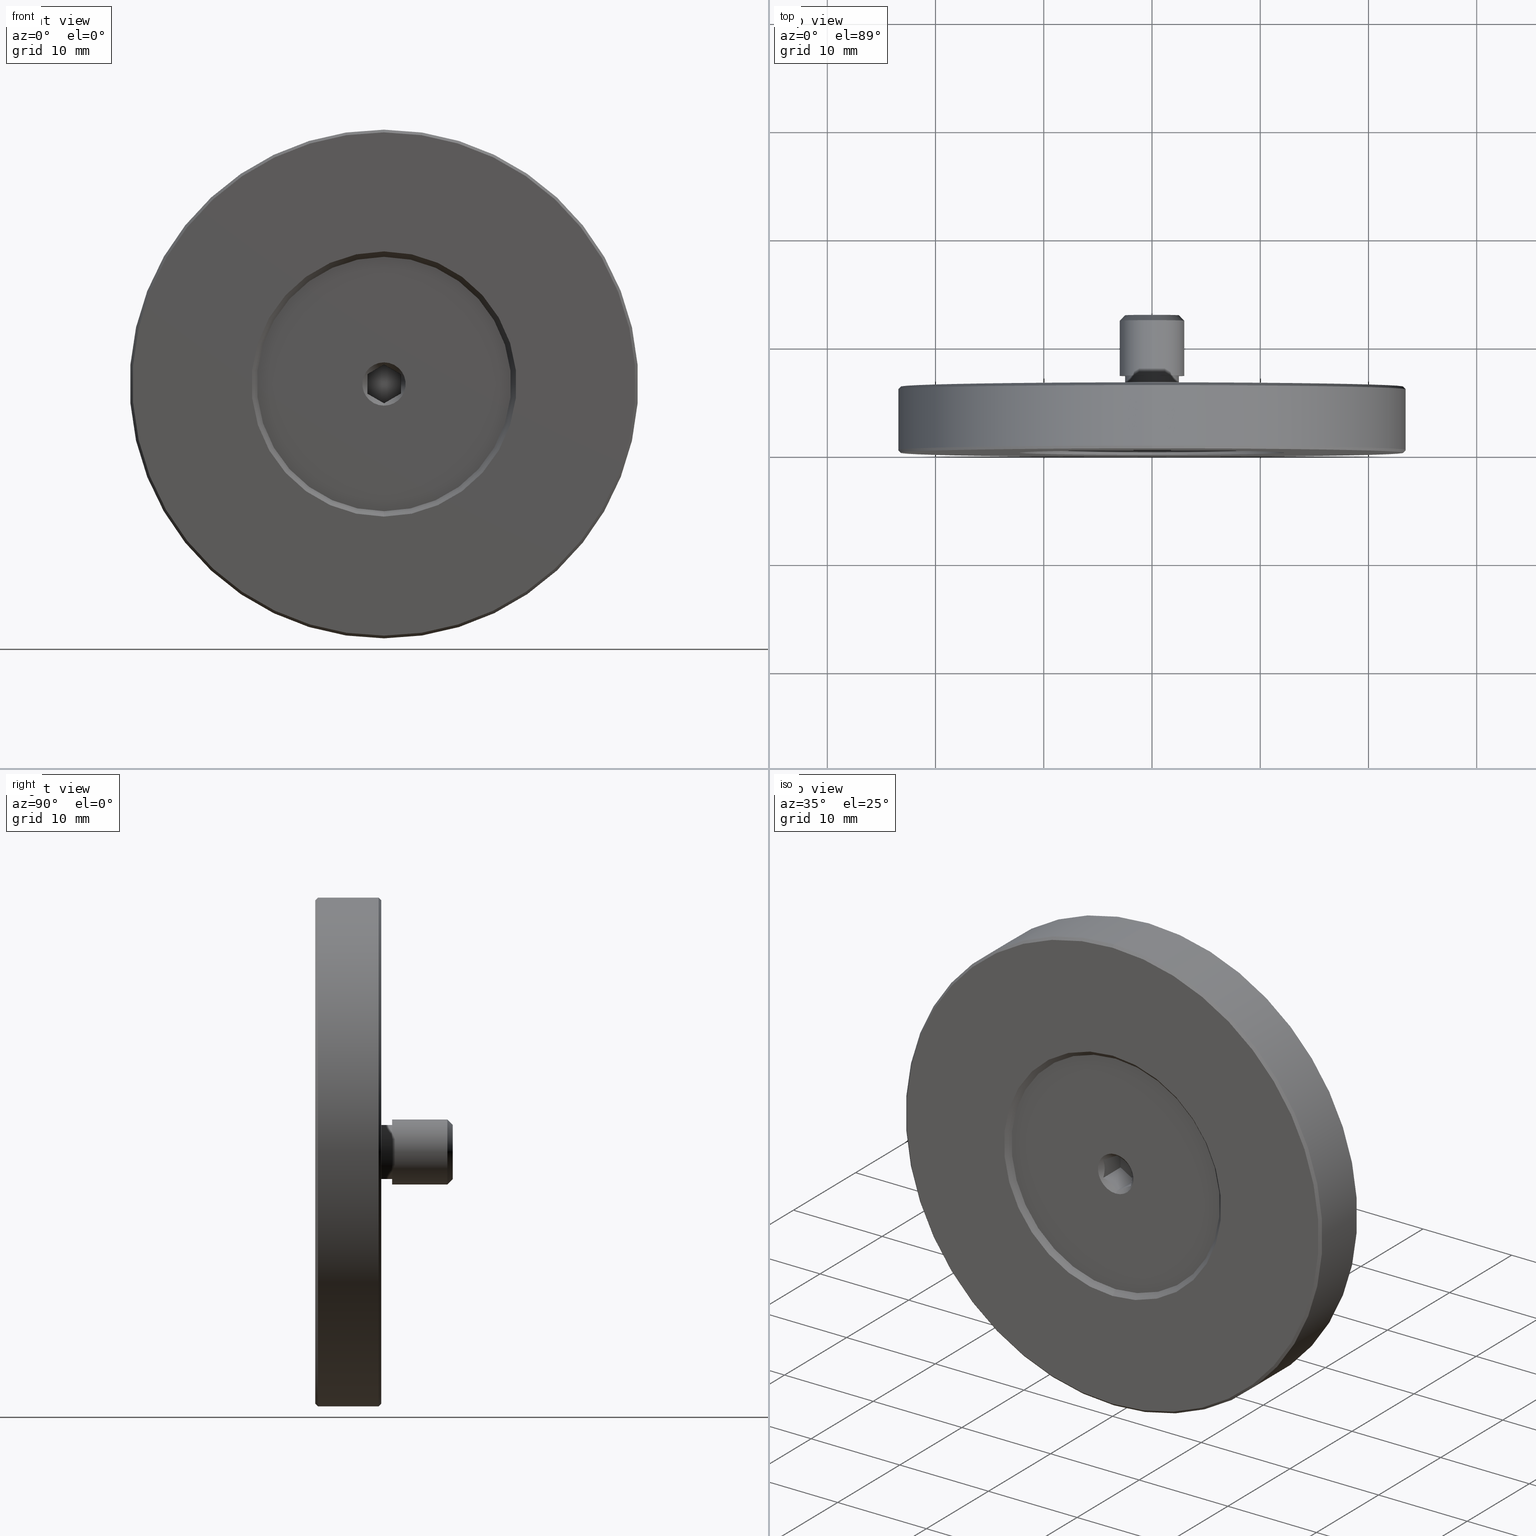
[diagram: canonical four-view strip — front | top / right | iso, engineering-drawing reading convention]
A machine part, canonical four-view strip (front | top / right | iso — engineering-drawing reading convention). The complete STEP part file that produces these views, byte-faithful:
ISO-10303-21;
HEADER;
FILE_DESCRIPTION (( 'STEP AP203' ),
    '1' );
FILE_NAME ('1.4.6.3_ZGD-1.5B��1.5Ӣ��֧�˵�������M6x6mm��˿��A.STEP',
    '2024-04-06T04:53:28',
    ( '' ),
    ( '' ),
    'SwSTEP 2.0',
    'SolidWorks 2021',
    '' );
FILE_SCHEMA (( 'CONFIG_CONTROL_DESIGN' ));
ENDSEC;

DATA;
#1 = DIRECTION ( 'NONE',  ( 0.000000000000000000, -1.000000000000000000, 0.000000000000000000 ) ) ;
#2 = ORIENTED_EDGE ( 'NONE', *, *, #815, .F. ) ;
#3 = CARTESIAN_POINT ( 'NONE',  ( 1.549999999999999600, 0.9501134359125126272, -0.3136435629114799339 ) ) ;
#4 = DIRECTION ( 'NONE',  ( 0.000000000000000000, -0.000000000000000000, -1.000000000000000000 ) ) ;
#5 = EDGE_CURVE ( 'NONE', #668, #128, #453, .T. ) ;
#6 = CARTESIAN_POINT ( 'NONE',  ( 0.000000000000000000, 0.000000000000000000, -12.25000000000001066 ) ) ;
#7 = VERTEX_POINT ( 'NONE', #331 ) ;
#8 = DIRECTION ( 'NONE',  ( 8.659560562354948882E-17, -0.7071067811865463515, 0.7071067811865487940 ) ) ;
#9 = CARTESIAN_POINT ( 'NONE',  ( -1.550000000000000488, 0.9501134359124662199, -0.3136435629120977175 ) ) ;
#10 = CARTESIAN_POINT ( 'NONE',  ( 0.000000000000000000, 0.5000000000000091038, 0.000000000000000000 ) ) ;
#11 = COORDINATED_UNIVERSAL_TIME_OFFSET ( 8, 0, .AHEAD. ) ;
#12 = EDGE_LOOP ( 'NONE', ( #714, #117 ) ) ;
#13 = CARTESIAN_POINT ( 'NONE',  ( 1.550000000000000044, 0.8402213663102502395, 0.6107712179113982121 ) ) ;
#14 = AXIS2_PLACEMENT_3D ( 'NONE', #444, #44, #758 ) ;
#15 = CARTESIAN_POINT ( 'NONE',  ( 0.5014726642574464099, 0.9245242886812501393, -1.500260456787564145 ) ) ;
#16 = CC_DESIGN_SECURITY_CLASSIFICATION ( #129, ( #814 ) ) ;
#17 = DIRECTION ( 'NONE',  ( 0.000000000000000000, 0.000000000000000000, -1.000000000000000000 ) ) ;
#18 = EDGE_LOOP ( 'NONE', ( #105, #166, #710, #324 ) ) ;
#19 = FACE_OUTER_BOUND ( 'NONE', #18, .T. ) ;
#20 = EDGE_CURVE ( 'NONE', #764, #649, #617, .T. ) ;
#21 = LINE ( 'NONE', #365, #333 ) ;
#22 = CARTESIAN_POINT ( 'NONE',  ( 0.000000000000000000, 6.099999999999999645, 0.000000000000000000 ) ) ;
#23 = ADVANCED_FACE ( 'NONE', ( #76, #842 ), #385, .T. ) ;
#24 = DIRECTION ( 'NONE',  ( 0.000000000000000000, 0.000000000000000000, -1.000000000000000000 ) ) ;
#25 = AXIS2_PLACEMENT_3D ( 'NONE', #255, #188, #151 ) ;
#26 = CARTESIAN_POINT ( 'NONE',  ( -5.972775179214869693E-16, 0.7102141655121593233, -1.789785834487840122 ) ) ;
#27 = AXIS2_PLACEMENT_3D ( 'NONE', #640, #455, #567 ) ;
#28 = CARTESIAN_POINT ( 'NONE',  ( 0.000000000000000000, 6.099999999999999645, 0.000000000000000000 ) ) ;
#29 = CARTESIAN_POINT ( 'NONE',  ( 0.000000000000000000, 0.5000000000000091038, -11.75000000000000178 ) ) ;
#30 = LINE ( 'NONE', #635, #813 ) ;
#31 = ORIENTED_EDGE ( 'NONE', *, *, #724, .F. ) ;
#32 = EDGE_CURVE ( 'NONE', #456, #246, #113, .T. ) ;
#33 = CARTESIAN_POINT ( 'NONE',  ( -0.6368339000777583081, 0.9496641991101084646, 1.422109610848868000 ) ) ;
#34 = EDGE_LOOP ( 'NONE', ( #190, #768, #741, #304 ) ) ;
#35 = LINE ( 'NONE', #311, #472 ) ;
#36 = CARTESIAN_POINT ( 'NONE',  ( 0.000000000000000000, 0.2500000000000002220, 23.49999999999999645 ) ) ;
#37 = ORIENTED_EDGE ( 'NONE', *, *, #572, .F. ) ;
#38 = AXIS2_PLACEMENT_3D ( 'NONE', #66, #467, #392 ) ;
#39 = AXIS2_PLACEMENT_3D ( 'NONE', #697, #227, #86 ) ;
#40 = VECTOR ( 'NONE', #573, 1000.000000000000000 ) ;
#41 = CARTESIAN_POINT ( 'NONE',  ( 0.000000000000000000, 0.000000000000000000, 0.000000000000000000 ) ) ;
#42 = LINE ( 'NONE', #307, #170 ) ;
#43 = EDGE_CURVE ( 'NONE', #171, #112, #846, .T. ) ;
#44 = DIRECTION ( 'NONE',  ( 0.000000000000000000, -1.000000000000000000, 0.000000000000000000 ) ) ;
#45 = ORIENTED_EDGE ( 'NONE', *, *, #54, .T. ) ;
#46 = CARTESIAN_POINT ( 'NONE',  ( -1.550000000000000266, 3.500000000000000000, 0.8948929172439208379 ) ) ;
#47 = CYLINDRICAL_SURFACE ( 'NONE', #497, 23.49999999999999645 ) ;
#48 = CC_DESIGN_PERSON_AND_ORGANIZATION_ASSIGNMENT ( #648, #784, ( #814 ) ) ;
#49 = VERTEX_POINT ( 'NONE', #65 ) ;
#50 = FACE_OUTER_BOUND ( 'NONE', #375, .T. ) ;
#51 = CARTESIAN_POINT ( 'NONE',  ( 1.549999999999999600, 3.500000000000000000, 0.8948929172439209490 ) ) ;
#52 = VERTEX_POINT ( 'NONE', #56 ) ;
#53 = AXIS2_PLACEMENT_3D ( 'NONE', #796, #78, #205 ) ;
#54 = EDGE_CURVE ( 'NONE', #738, #501, #704, .T. ) ;
#55 = FACE_OUTER_BOUND ( 'NONE', #642, .T. ) ;
#56 = CARTESIAN_POINT ( 'NONE',  ( 1.549999999999999600, 0.7102141655121591013, 0.8948929172439209490 ) ) ;
#57 = FACE_OUTER_BOUND ( 'NONE', #853, .T. ) ;
#58 = ORIENTED_EDGE ( 'NONE', *, *, #685, .F. ) ;
#59 = CC_DESIGN_PERSON_AND_ORGANIZATION_ASSIGNMENT ( #249, #252, ( #718 ) ) ;
#60 = DIRECTION ( 'NONE',  ( 0.000000000000000000, 0.000000000000000000, 1.000000000000000000 ) ) ;
#61 = DIRECTION ( 'NONE',  ( 0.000000000000000000, -1.000000000000000000, 0.000000000000000000 ) ) ;
#62 = PERSON_AND_ORGANIZATION_ROLE ( 'classification_officer' ) ;
#63 = ORIENTED_EDGE ( 'NONE', *, *, #107, .F. ) ;
#64 = CARTESIAN_POINT ( 'NONE',  ( 1.048527335742552191, 0.9245242886812496952, 1.184418294944196370 ) ) ;
#65 = CARTESIAN_POINT ( 'NONE',  ( 2.449293598294706414E-16, 0.5000000000000000000, 2.000000000000000000 ) ) ;
#66 = CARTESIAN_POINT ( 'NONE',  ( 0.000000000000000000, 7.099999999999999645, 0.000000000000000000 ) ) ;
#67 = APPROVAL_DATE_TIME ( #665, #266 ) ;
#68 = EDGE_LOOP ( 'NONE', ( #149, #844, #207, #318 ) ) ;
#69 = AXIS2_PLACEMENT_3D ( 'NONE', #726, #794, #84 ) ;
#70 = CARTESIAN_POINT ( 'NONE',  ( 3.673940397442060361E-16, 7.099999999999999645, 3.000000000000000444 ) ) ;
#71 = DIRECTION ( 'NONE',  ( 0.000000000000000000, -1.000000000000000000, 0.000000000000000000 ) ) ;
#72 = EDGE_CURVE ( 'NONE', #766, #368, #234, .T. ) ;
#73 = DIRECTION ( 'NONE',  ( -0.000000000000000000, -1.000000000000000000, -0.000000000000000000 ) ) ;
#74 = ORIENTED_EDGE ( 'NONE', *, *, #572, .T. ) ;
#75 = DIRECTION ( 'NONE',  ( -0.000000000000000000, -1.000000000000000000, -0.000000000000000000 ) ) ;
#76 = FACE_BOUND ( 'NONE', #316, .T. ) ;
#77 = EDGE_CURVE ( 'NONE', #738, #7, #322, .T. ) ;
#78 = DIRECTION ( 'NONE',  ( -0.000000000000000000, -1.000000000000000000, -0.000000000000000000 ) ) ;
#79 = ORIENTED_EDGE ( 'NONE', *, *, #579, .T. ) ;
#80 = DIRECTION ( 'NONE',  ( -0.000000000000000000, 1.000000000000000000, -0.000000000000000000 ) ) ;
#81 = DIRECTION ( 'NONE',  ( 0.000000000000000000, -1.000000000000000000, 0.000000000000000000 ) ) ;
#82 = ORIENTED_EDGE ( 'NONE', *, *, #821, .T. ) ;
#83 = EDGE_CURVE ( 'NONE', #246, #144, #343, .T. ) ;
#84 = DIRECTION ( 'NONE',  ( 0.000000000000000000, 0.000000000000000000, 1.000000000000000000 ) ) ;
#85 = AXIS2_PLACEMENT_3D ( 'NONE', #28, #81, #348 ) ;
#86 = DIRECTION ( 'NONE',  ( 0.000000000000000000, -0.000000000000000000, 1.000000000000000000 ) ) ;
#87 = EDGE_CURVE ( 'NONE', #120, #452, #204, .T. ) ;
#88 = CARTESIAN_POINT ( 'NONE',  ( 0.000000000000000000, 12.19999999999999041, -3.000000000000000444 ) ) ;
#89 = CARTESIAN_POINT ( 'NONE',  ( -0.2436364570809650132, 0.8508777395928381893, -1.649122260407738239 ) ) ;
#90 = CYLINDRICAL_SURFACE ( 'NONE', #608, 2.500000000000000444 ) ;
#91 = CARTESIAN_POINT ( 'NONE',  ( 2.213069868538627591E-17, 0.7102141655121585462, 1.789785834487840788 ) ) ;
#92 = CONICAL_SURFACE ( 'NONE', #721, 11.75000000000000178, 0.7853981633974482790 ) ;
#93 = DIRECTION ( 'NONE',  ( 0.000000000000000000, 0.000000000000000000, 1.000000000000000000 ) ) ;
#94 = CYLINDRICAL_SURFACE ( 'NONE', #302, 2.500000000000000444 ) ;
#95 = AXIS2_PLACEMENT_3D ( 'NONE', #219, #101, #500 ) ;
#96 = ADVANCED_FACE ( 'NONE', ( #779 ), #359, .T. ) ;
#97 = ORIENTED_EDGE ( 'NONE', *, *, #800, .T. ) ;
#98 = CARTESIAN_POINT ( 'NONE',  ( 1.469576158976824736E-15, 0.5000000000000000000, 11.75000000000000178 ) ) ;
#99 = CARTESIAN_POINT ( 'NONE',  ( 0.000000000000000000, 0.5000000000000000000, -11.75000000000000178 ) ) ;
#100 = B_SPLINE_CURVE_WITH_KNOTS ( 'NONE', 3,
 ( #809, #155, #354, #284, #686, #743, #89, #673 ),
 .UNSPECIFIED., .F., .F.,
 ( 4, 2, 2, 4 ),
 ( 2.544363529774557411E-07, 0.0004624475619159532200, 0.0009246406874789290468, 0.001849026938604880592 ),
 .UNSPECIFIED. ) ;
#101 = DIRECTION ( 'NONE',  ( 0.000000000000000000, 1.000000000000000000, 0.000000000000000000 ) ) ;
#102 = EDGE_LOOP ( 'NONE', ( #31, #445, #712, #435 ) ) ;
#103 = CARTESIAN_POINT ( 'NONE',  ( 0.000000000000000000, 0.5000000000000000000, 0.000000000000000000 ) ) ;
#104 = FACE_OUTER_BOUND ( 'NONE', #346, .T. ) ;
#105 = ORIENTED_EDGE ( 'NONE', *, *, #774, .F. ) ;
#106 = DIRECTION ( 'NONE',  ( 0.000000000000000000, 0.000000000000000000, 1.000000000000000000 ) ) ;
#107 = EDGE_CURVE ( 'NONE', #120, #300, #297, .T. ) ;
#108 = CARTESIAN_POINT ( 'NONE',  ( 0.000000000000000000, 6.099999999999999645, -23.24999999999999289 ) ) ;
#109 = MANIFOLD_SOLID_BREP ( '����3', #561 ) ;
#110 = ADVANCED_BREP_SHAPE_REPRESENTATION ( '1.4.6.3_ZGD-1.5B��1.5Ӣ��֧�˵�������M6x6mm��˿��A', ( #109, #522 ), #361 ) ;
#111 = DIRECTION ( 'NONE',  ( 0.000000000000000000, 0.000000000000000000, 1.000000000000000000 ) ) ;
#112 = VERTEX_POINT ( 'NONE', #683 ) ;
#113 = CIRCLE ( 'NONE', #507, 23.24999999999999645 ) ;
#114 = AXIS2_PLACEMENT_3D ( 'NONE', #292, #811, #614 ) ;
#115 = LINE ( 'NONE', #46, #40 ) ;
#116 = DIRECTION ( 'NONE',  ( 8.659560562354874926E-17, -0.7071067811865524577, 0.7071067811865426878 ) ) ;
#117 = ORIENTED_EDGE ( 'NONE', *, *, #774, .T. ) ;
#118 = CALENDAR_DATE ( 2024, 6, 4 ) ;
#119 = VERTEX_POINT ( 'NONE', #217 ) ;
#120 = VERTEX_POINT ( 'NONE', #26 ) ;
#121 = EDGE_CURVE ( 'NONE', #494, #793, #424, .T. ) ;
#122 = MECHANICAL_CONTEXT ( 'NONE', #540, 'mechanical' ) ;
#123 = B_SPLINE_CURVE_WITH_KNOTS ( 'NONE', 3,
 ( #477, #272, #396, #64, #535, #268, #198, #519 ),
 .UNSPECIFIED., .F., .F.,
 ( 4, 2, 2, 4 ),
 ( 2.544363529774557411E-07, 0.0004624475619159531116, 0.0009246406874789288299, 0.001849026938604880158 ),
 .UNSPECIFIED. ) ;
#124 = ORIENTED_EDGE ( 'NONE', *, *, #83, .F. ) ;
#125 = VERTEX_POINT ( 'NONE', #413 ) ;
#126 = VECTOR ( 'NONE', #357, 1000.000000000000000 ) ;
#127 = AXIS2_PLACEMENT_3D ( 'NONE', #480, #742, #465 ) ;
#128 = VERTEX_POINT ( 'NONE', #546 ) ;
#129 = SECURITY_CLASSIFICATION ( '', '', #193 ) ;
#130 = DIRECTION ( 'NONE',  ( 0.5000000000000001110, -0.000000000000000000, 0.8660254037844385966 ) ) ;
#131 = DIRECTION ( 'NONE',  ( 0.000000000000000000, -1.000000000000000000, 0.000000000000000000 ) ) ;
#132 = DIRECTION ( 'NONE',  ( 0.000000000000000000, 1.000000000000000000, 0.000000000000000000 ) ) ;
#133 = PERSON_AND_ORGANIZATION ( #681, #609 ) ;
#134 = LINE ( 'NONE', #731, #706 ) ;
#135 = DIRECTION ( 'NONE',  ( 0.000000000000000000, -1.000000000000000000, 0.000000000000000000 ) ) ;
#136 = CARTESIAN_POINT ( 'NONE',  ( 0.000000000000000000, 3.500000000000000000, 0.000000000000000000 ) ) ;
#137 = APPROVAL_ROLE ( '' ) ;
#138 = ORIENTED_EDGE ( 'NONE', *, *, #454, .F. ) ;
#139 = CARTESIAN_POINT ( 'NONE',  ( 1.549999999999999822, 0.7102141655121594344, -0.8948929172439203938 ) ) ;
#140 = EDGE_CURVE ( 'NONE', #112, #120, #100, .T. ) ;
#141 = ORIENTED_EDGE ( 'NONE', *, *, #236, .F. ) ;
#142 = CIRCLE ( 'NONE', #403, 12.25000000000001066 ) ;
#143 = CARTESIAN_POINT ( 'NONE',  ( -3.705363497162986983E-18, 3.500000000000000000, 1.789785834487840788 ) ) ;
#144 = VERTEX_POINT ( 'NONE', #416 ) ;
#145 = AXIS2_PLACEMENT_3D ( 'NONE', #808, #157, #224 ) ;
#146 = DIRECTION ( 'NONE',  ( -0.000000000000000000, -1.000000000000000000, -0.000000000000000000 ) ) ;
#147 = DIRECTION ( 'NONE',  ( -0.000000000000000000, -1.000000000000000000, -0.000000000000000000 ) ) ;
#148 = PLANE ( 'NONE',  #630 ) ;
#149 = ORIENTED_EDGE ( 'NONE', *, *, #492, .F. ) ;
#150 = FACE_OUTER_BOUND ( 'NONE', #777, .T. ) ;
#151 = DIRECTION ( 'NONE',  ( 0.000000000000000000, 0.000000000000000000, 1.000000000000000000 ) ) ;
#152 = EDGE_CURVE ( 'NONE', #727, #300, #688, .T. ) ;
#153 = ORIENTED_EDGE ( 'NONE', *, *, #364, .F. ) ;
#154 = DIRECTION ( 'NONE',  ( -0.000000000000000000, -1.000000000000000000, -0.000000000000000000 ) ) ;
#155 = CARTESIAN_POINT ( 'NONE',  ( -1.428895979059656707, 0.7801336046020121984, -0.9648123563337728248 ) ) ;
#156 = DIRECTION ( 'NONE',  ( -0.8660254037844387076, 0.000000000000000000, -0.4999999999999999445 ) ) ;
#157 = DIRECTION ( 'NONE',  ( 0.000000000000000000, -1.000000000000000000, 0.000000000000000000 ) ) ;
#158 = CIRCLE ( 'NONE', #332, 3.000000000000000444 ) ;
#159 = AXIS2_PLACEMENT_3D ( 'NONE', #103, #430, #425 ) ;
#160 = LOCAL_TIME ( 12, 53, 28.00000000000000000, #238 ) ;
#161 = DIRECTION ( 'NONE',  ( -0.000000000000000000, -1.000000000000000000, -0.000000000000000000 ) ) ;
#162 = LINE ( 'NONE', #29, #222 ) ;
#163 = CARTESIAN_POINT ( 'NONE',  ( 3.673940397442060361E-16, 12.19999999999999041, 3.000000000000000444 ) ) ;
#164 = ADVANCED_FACE ( 'NONE', ( #290 ), #94, .T. ) ;
#165 = CARTESIAN_POINT ( 'NONE',  ( 1.549999999999999822, 0.7102141655121594344, -0.8948929172439203938 ) ) ;
#166 = ORIENTED_EDGE ( 'NONE', *, *, #502, .T. ) ;
#167 = CARTESIAN_POINT ( 'NONE',  ( -0.2449400893454137806, 0.8395827459335325482, 1.648369607968935169 ) ) ;
#168 = VECTOR ( 'NONE', #707, 1000.000000000000114 ) ;
#169 = CARTESIAN_POINT ( 'NONE',  ( 2.862611893006937638E-15, 0.000000000000000000, -23.24999999999999645 ) ) ;
#170 = VECTOR ( 'NONE', #116, 1000.000000000000000 ) ;
#171 = VERTEX_POINT ( 'NONE', #832 ) ;
#172 = CARTESIAN_POINT ( 'NONE',  ( -1.550000000000000266, 0.7102141655121587682, 0.8948929172439209490 ) ) ;
#173 = ORIENTED_EDGE ( 'NONE', *, *, #223, .T. ) ;
#174 = ADVANCED_FACE ( 'NONE', ( #491 ), #191, .F. ) ;
#175 = DATE_TIME_ROLE ( 'creation_date' ) ;
#176 = VERTEX_POINT ( 'NONE', #624 ) ;
#177 = APPROVAL_STATUS ( 'not_yet_approved' ) ;
#178 = FACE_OUTER_BOUND ( 'NONE', #263, .T. ) ;
#179 = VECTOR ( 'NONE', #239, 1000.000000000000000 ) ;
#180 = ORIENTED_EDGE ( 'NONE', *, *, #83, .T. ) ;
#181 = AXIS2_PLACEMENT_3D ( 'NONE', #803, #73, #200 ) ;
#182 = AXIS2_PLACEMENT_3D ( 'NONE', #587, #80, #660 ) ;
#183 = DIRECTION ( 'NONE',  ( 0.4999999999999998335, 0.000000000000000000, -0.8660254037844388186 ) ) ;
#184 = DIRECTION ( 'NONE',  ( 0.000000000000000000, 1.000000000000000000, 0.000000000000000000 ) ) ;
#185 = ORIENTED_EDGE ( 'NONE', *, *, #215, .T. ) ;
#186 = PRODUCT_DEFINITION_SHAPE ( 'NONE', 'NONE',  #278 ) ;
#187 = PLANE ( 'NONE',  #786 ) ;
#188 = DIRECTION ( 'NONE',  ( -0.000000000000000000, 1.000000000000000000, -0.000000000000000000 ) ) ;
#189 = ORIENTED_EDGE ( 'NONE', *, *, #423, .T. ) ;
#190 = ORIENTED_EDGE ( 'NONE', *, *, #622, .T. ) ;
#191 = CONICAL_SURFACE ( 'NONE', #736, 2.000000000000000000, 0.7853981633974500554 ) ;
#192 = CIRCLE ( 'NONE', #443, 23.49999999999999645 ) ;
#193 = SECURITY_CLASSIFICATION_LEVEL ( 'unclassified' ) ;
#194 = CARTESIAN_POINT ( 'NONE',  ( -3.705363497162986983E-18, 3.500000000000000000, 1.789785834487840788 ) ) ;
#195 = ORIENTED_EDGE ( 'NONE', *, *, #605, .F. ) ;
#196 = EDGE_CURVE ( 'NONE', #675, #727, #620, .T. ) ;
#197 = CARTESIAN_POINT ( 'NONE',  ( 1.549999999999999822, 0.7102141655121594344, -0.8948929172439203938 ) ) ;
#198 = CARTESIAN_POINT ( 'NONE',  ( 0.2436364570809644858, 0.8508777395928374121, 1.649122260407739127 ) ) ;
#199 = CARTESIAN_POINT ( 'NONE',  ( -1.550000000000000266, 0.9499431302527148180, 0.1576619174215647678 ) ) ;
#200 = DIRECTION ( 'NONE',  ( 0.000000000000000000, 0.000000000000000000, -1.000000000000000000 ) ) ;
#201 = EDGE_LOOP ( 'NONE', ( #296, #37, #270, #63, #695, #586 ) ) ;
#202 = CC_DESIGN_PERSON_AND_ORGANIZATION_ASSIGNMENT ( #532, #804, ( #814 ) ) ;
#203 = CARTESIAN_POINT ( 'NONE',  ( 0.000000000000000000, 6.099999999999999645, 0.000000000000000000 ) ) ;
#204 = LINE ( 'NONE', #326, #484 ) ;
#205 = DIRECTION ( 'NONE',  ( 0.000000000000000000, 0.000000000000000000, -1.000000000000000000 ) ) ;
#206 = APPROVAL_STATUS ( 'not_yet_approved' ) ;
#207 = ORIENTED_EDGE ( 'NONE', *, *, #669, .T. ) ;
#208 = CIRCLE ( 'NONE', #27, 2.499999999999995115 ) ;
#209 = CARTESIAN_POINT ( 'NONE',  ( 0.000000000000000000, 12.69999999999999929, -2.499999999999995115 ) ) ;
#210 = EDGE_CURVE ( 'NONE', #675, #120, #35, .T. ) ;
#211 = CARTESIAN_POINT ( 'NONE',  ( 0.000000000000000000, 0.000000000000000000, 0.000000000000000000 ) ) ;
#212 = ORIENTED_EDGE ( 'NONE', *, *, #20, .T. ) ;
#213 = FACE_OUTER_BOUND ( 'NONE', #729, .T. ) ;
#214 = DIRECTION ( 'NONE',  ( -0.8660254037844385966, 0.000000000000000000, 0.5000000000000001110 ) ) ;
#215 = EDGE_CURVE ( 'NONE', #649, #226, #301, .T. ) ;
#216 = DIRECTION ( 'NONE',  ( 0.000000000000000000, 1.000000000000000000, 0.000000000000000000 ) ) ;
#217 = CARTESIAN_POINT ( 'NONE',  ( 0.000000000000000000, 6.099999999999999645, -23.24999999999999289 ) ) ;
#218 = DIRECTION ( 'NONE',  ( 0.000000000000000000, -0.7071067811865524577, -0.7071067811865426878 ) ) ;
#219 = CARTESIAN_POINT ( 'NONE',  ( 0.000000000000000000, 0.000000000000000000, 0.000000000000000000 ) ) ;
#220 = CARTESIAN_POINT ( 'NONE',  ( -1.550000000000000266, 3.500000000000000000, -0.8948929172439197277 ) ) ;
#221 = AXIS2_PLACEMENT_3D ( 'NONE', #471, #135, #60 ) ;
#222 = VECTOR ( 'NONE', #496, 1000.000000000000114 ) ;
#223 = EDGE_CURVE ( 'NONE', #119, #629, #765, .T. ) ;
#224 = DIRECTION ( 'NONE',  ( 0.000000000000000000, 0.000000000000000000, -1.000000000000000000 ) ) ;
#225 = CARTESIAN_POINT ( 'NONE',  ( 1.549999999999999822, 3.500000000000000000, -0.8948929172439203938 ) ) ;
#226 = VERTEX_POINT ( 'NONE', #829 ) ;
#227 = DIRECTION ( 'NONE',  ( 0.000000000000000000, 1.000000000000000000, 0.000000000000000000 ) ) ;
#228 = EDGE_CURVE ( 'NONE', #125, #309, #142, .T. ) ;
#229 = DIRECTION ( 'NONE',  ( 0.000000000000000000, 0.000000000000000000, 1.000000000000000000 ) ) ;
#230 = EDGE_LOOP ( 'NONE', ( #720, #237 ) ) ;
#231 = CARTESIAN_POINT ( 'NONE',  ( 0.000000000000000000, 6.099999999999999645, 0.000000000000000000 ) ) ;
#232 = CARTESIAN_POINT ( 'NONE',  ( -1.042767627525058138, 0.9506610853905053116, 1.187743664034020874 ) ) ;
#233 = CARTESIAN_POINT ( 'NONE',  ( -5.302822042044525202E-16, 3.500000000000000000, -1.789785834487839900 ) ) ;
#234 = CIRCLE ( 'NONE', #549, 11.75000000000000178 ) ;
#235 = CIRCLE ( 'NONE', #159, 2.000000000000000000 ) ;
#236 = EDGE_CURVE ( 'NONE', #649, #764, #158, .T. ) ;
#237 = ORIENTED_EDGE ( 'NONE', *, *, #228, .T. ) ;
#238 = COORDINATED_UNIVERSAL_TIME_OFFSET ( 8, 0, .AHEAD. ) ;
#239 = DIRECTION ( 'NONE',  ( -0.000000000000000000, -1.000000000000000000, -0.000000000000000000 ) ) ;
#240 = ORIENTED_EDGE ( 'NONE', *, *, #526, .T. ) ;
#241 = DIRECTION ( 'NONE',  ( 0.000000000000000000, 0.7071067811865474617, 0.7071067811865474617 ) ) ;
#242 = ORIENTED_EDGE ( 'NONE', *, *, #358, .F. ) ;
#243 = CARTESIAN_POINT ( 'NONE',  ( -1.550000000000000266, 3.500000000000000000, -0.8948929172439197277 ) ) ;
#244 = CARTESIAN_POINT ( 'NONE',  ( 0.000000000000000000, 0.5000000000000000000, 0.000000000000000000 ) ) ;
#245 = VECTOR ( 'NONE', #71, 1000.000000000000000 ) ;
#246 = VERTEX_POINT ( 'NONE', #169 ) ;
#247 = AXIS2_PLACEMENT_3D ( 'NONE', #448, #130, #317 ) ;
#248 = VECTOR ( 'NONE', #321, 1000.000000000000000 ) ;
#249 = PERSON_AND_ORGANIZATION ( #681, #609 ) ;
#250 = ADVANCED_FACE ( 'NONE', ( #433 ), #694, .T. ) ;
#251 = EDGE_LOOP ( 'NONE', ( #414, #833 ) ) ;
#252 = PERSON_AND_ORGANIZATION_ROLE ( 'design_owner' ) ;
#253 = ADVANCED_FACE ( 'NONE', ( #334 ), #92, .F. ) ;
#254 = DIRECTION ( 'NONE',  ( 0.000000000000000000, 0.000000000000000000, -1.000000000000000000 ) ) ;
#255 = CARTESIAN_POINT ( 'NONE',  ( 0.000000000000000000, 0.2500000000000002220, 0.000000000000000000 ) ) ;
#256 = CALENDAR_DATE ( 2024, 6, 4 ) ;
#257 = DIRECTION ( 'NONE',  ( 0.000000000000000000, 0.000000000000000000, 1.000000000000000000 ) ) ;
#258 = DIRECTION ( 'NONE',  ( 0.000000000000000000, 0.000000000000000000, 1.000000000000000000 ) ) ;
#259 = EDGE_CURVE ( 'NONE', #582, #7, #662, .T. ) ;
#260 = CIRCLE ( 'NONE', #574, 2.500000000000000444 ) ;
#261 = VECTOR ( 'NONE', #762, 1000.000000000000000 ) ;
#262 = FACE_BOUND ( 'NONE', #230, .T. ) ;
#263 = EDGE_LOOP ( 'NONE', ( #759, #428, #189, #514 ) ) ;
#264 = LINE ( 'NONE', #194, #575 ) ;
#265 = DIRECTION ( 'NONE',  ( 0.000000000000000000, 0.000000000000000000, 1.000000000000000000 ) ) ;
#266 = APPROVAL ( #206, 'δָ��' ) ;
#267 = EDGE_LOOP ( 'NONE', ( #637, #457, #82, #805 ) ) ;
#268 = CARTESIAN_POINT ( 'NONE',  ( 0.5072323724749416840, 0.9506610853905052005, 1.496935087697740308 ) ) ;
#269 = CARTESIAN_POINT ( 'NONE',  ( 2.877919977996279531E-15, 6.099999999999999645, 23.49999999999999645 ) ) ;
#270 = ORIENTED_EDGE ( 'NONE', *, *, #526, .F. ) ;
#271 = EDGE_CURVE ( 'NONE', #246, #456, #645, .T. ) ;
#272 = CARTESIAN_POINT ( 'NONE',  ( 1.428895979059656929, 0.7801336046020121984, 0.9648123563337740460 ) ) ;
#273 = DIRECTION ( 'NONE',  ( 0.000000000000000000, -0.7071067811865463515, -0.7071067811865487940 ) ) ;
#274 = FACE_OUTER_BOUND ( 'NONE', #34, .T. ) ;
#275 = ORIENTED_EDGE ( 'NONE', *, *, #387, .F. ) ;
#276 = CIRCLE ( 'NONE', #95, 12.25000000000001066 ) ;
#277 = LINE ( 'NONE', #209, #418 ) ;
#278 = PRODUCT_DEFINITION ( 'δ֪', '', #814, #544 ) ;
#279 = CARTESIAN_POINT ( 'NONE',  ( 1.549999999999999600, 3.500000000000000000, 0.8948929172439209490 ) ) ;
#280 = ORIENTED_EDGE ( 'NONE', *, *, #655, .F. ) ;
#281 = FACE_OUTER_BOUND ( 'NONE', #819, .T. ) ;
#282 = CARTESIAN_POINT ( 'NONE',  ( -5.972775179214869693E-16, 0.7102141655121593233, -1.789785834487840122 ) ) ;
#283 = DIRECTION ( 'NONE',  ( -0.000000000000000000, -1.000000000000000000, -0.000000000000000000 ) ) ;
#284 = CARTESIAN_POINT ( 'NONE',  ( -1.048527335742552857, 0.9245242886812496952, -1.184418294944195704 ) ) ;
#285 = ADVANCED_FACE ( 'NONE', ( #57 ), #148, .F. ) ;
#286 = AXIS2_PLACEMENT_3D ( 'NONE', #211, #460, #847 ) ;
#287 = CARTESIAN_POINT ( 'NONE',  ( 1.549999999999999822, 3.500000000000000000, -0.8948929172439203938 ) ) ;
#288 = CIRCLE ( 'NONE', #631, 11.75000000000000178 ) ;
#289 = AXIS2_PLACEMENT_3D ( 'NONE', #785, #469, #601 ) ;
#290 = FACE_OUTER_BOUND ( 'NONE', #639, .T. ) ;
#291 = APPROVAL_PERSON_ORGANIZATION ( #740, #266, #137 ) ;
#292 = CARTESIAN_POINT ( 'NONE',  ( 0.000000000000000000, 5.849999999999992539, 0.000000000000000000 ) ) ;
#293 = LINE ( 'NONE', #488, #737 ) ;
#294 = DIRECTION ( 'NONE',  ( 0.000000000000000000, -1.000000000000000000, 0.000000000000000000 ) ) ;
#295 = FACE_BOUND ( 'NONE', #505, .T. ) ;
#296 = ORIENTED_EDGE ( 'NONE', *, *, #534, .F. ) ;
#297 = B_SPLINE_CURVE_WITH_KNOTS ( 'NONE', 3,
 ( #282, #536, #487, #15, #543, #802, #426, #165 ),
 .UNSPECIFIED., .F., .F.,
 ( 4, 2, 2, 4 ),
 ( 2.544363529772560002E-07, 0.0004624475619159531658, 0.0009246406874789291552, 0.001849026938604881026 ),
 .UNSPECIFIED. ) ;
#298 = DIRECTION ( 'NONE',  ( 0.000000000000000000, 0.000000000000000000, 1.000000000000000000 ) ) ;
#299 = ADVANCED_FACE ( 'NONE', ( #262, #657 ), #725, .F. ) ;
#300 = VERTEX_POINT ( 'NONE', #197 ) ;
#301 = LINE ( 'NONE', #564, #179 ) ;
#302 = AXIS2_PLACEMENT_3D ( 'NONE', #677, #553, #818 ) ;
#303 = CONICAL_SURFACE ( 'NONE', #14, 2.499999999999995115, 0.7853981633974445042 ) ;
#304 = ORIENTED_EDGE ( 'NONE', *, *, #423, .F. ) ;
#305 = B_SPLINE_CURVE_WITH_KNOTS ( 'NONE', 3,
 ( #139, #789, #3, #654, #611, #13, #529, #676 ),
 .UNSPECIFIED., .F., .F.,
 ( 4, 2, 2, 4 ),
 ( 0.001570775741427415939, 0.002495383013869410284, 0.002957686650090407023, 0.003419990286311404195 ),
 .UNSPECIFIED. ) ;
#306 = DIRECTION ( 'NONE',  ( 0.000000000000000000, 0.000000000000000000, 1.000000000000000000 ) ) ;
#307 = CARTESIAN_POINT ( 'NONE',  ( 2.847303808017595350E-15, 6.099999999999999645, 23.24999999999999289 ) ) ;
#308 = CARTESIAN_POINT ( 'NONE',  ( 0.000000000000000000, 0.5000000000000000000, -2.000000000000000000 ) ) ;
#309 = VERTEX_POINT ( 'NONE', #6 ) ;
#310 = VERTEX_POINT ( 'NONE', #405 ) ;
#311 = CARTESIAN_POINT ( 'NONE',  ( -5.302822042044525202E-16, 3.500000000000000000, -1.789785834487839900 ) ) ;
#312 = CARTESIAN_POINT ( 'NONE',  ( 0.000000000000000000, 0.000000000000000000, 23.24999999999999645 ) ) ;
#313 = EDGE_LOOP ( 'NONE', ( #79, #74, #568, #329 ) ) ;
#314 = EDGE_CURVE ( 'NONE', #501, #738, #769, .T. ) ;
#315 = CARTESIAN_POINT ( 'NONE',  ( -5.302822042044525202E-16, 3.500000000000000000, -1.789785834487839900 ) ) ;
#316 = EDGE_LOOP ( 'NONE', ( #58, #242 ) ) ;
#317 = DIRECTION ( 'NONE',  ( 0.8660254037844385966, 0.000000000000000000, -0.5000000000000001110 ) ) ;
#318 = ORIENTED_EDGE ( 'NONE', *, *, #228, .F. ) ;
#319 = AXIS2_PLACEMENT_3D ( 'NONE', #360, #559, #436 ) ;
#320 = ADVANCED_FACE ( 'NONE', ( #388 ), #652, .T. ) ;
#321 = DIRECTION ( 'NONE',  ( -0.000000000000000000, -1.000000000000000000, -0.000000000000000000 ) ) ;
#322 = LINE ( 'NONE', #402, #245 ) ;
#323 = DIRECTION ( 'NONE',  ( 0.000000000000000000, -0.000000000000000000, -1.000000000000000000 ) ) ;
#324 = ORIENTED_EDGE ( 'NONE', *, *, #223, .F. ) ;
#325 = EDGE_CURVE ( 'NONE', #7, #582, #260, .T. ) ;
#326 = CARTESIAN_POINT ( 'NONE',  ( 0.000000000000000000, 0.5000000000000000000, -2.000000000000000000 ) ) ;
#327 = DIRECTION ( 'NONE',  ( 0.000000000000000000, 1.000000000000000000, 0.000000000000000000 ) ) ;
#328 = CALENDAR_DATE ( 2024, 6, 4 ) ;
#329 = ORIENTED_EDGE ( 'NONE', *, *, #121, .F. ) ;
#330 = PLANE ( 'NONE',  #127 ) ;
#331 = CARTESIAN_POINT ( 'NONE',  ( 3.061616997868383634E-16, 6.099999999999999645, 2.500000000000000444 ) ) ;
#332 = AXIS2_PLACEMENT_3D ( 'NONE', #362, #294, #229 ) ;
#333 = VECTOR ( 'NONE', #161, 1000.000000000000000 ) ;
#334 = FACE_OUTER_BOUND ( 'NONE', #68, .T. ) ;
#335 = ORIENTED_EDGE ( 'NONE', *, *, #744, .F. ) ;
#336 = CC_DESIGN_APPROVAL ( #483, ( #278 ) ) ;
#337 = DIRECTION ( 'NONE',  ( -0.000000000000000000, 1.000000000000000000, -0.000000000000000000 ) ) ;
#338 = ORIENTED_EDGE ( 'NONE', *, *, #325, .T. ) ;
#339 = DIRECTION ( 'NONE',  ( 0.000000000000000000, 1.000000000000000000, 0.000000000000000000 ) ) ;
#340 = COORDINATED_UNIVERSAL_TIME_OFFSET ( 8, 0, .AHEAD. ) ;
#341 = ORIENTED_EDGE ( 'NONE', *, *, #841, .F. ) ;
#342 = PLANE ( 'NONE',  #289 ) ;
#343 = LINE ( 'NONE', #581, #690 ) ;
#344 = ADVANCED_FACE ( 'NONE', ( #274 ), #585, .T. ) ;
#345 = CARTESIAN_POINT ( 'NONE',  ( -3.705363497162986983E-18, 3.500000000000000000, 1.789785834487840788 ) ) ;
#346 = EDGE_LOOP ( 'NONE', ( #560, #2, #397, #849 ) ) ;
#347 = CARTESIAN_POINT ( 'NONE',  ( 2.862611893006937244E-15, 6.099999999999999645, 23.24999999999999289 ) ) ;
#348 = DIRECTION ( 'NONE',  ( 0.000000000000000000, 0.000000000000000000, -1.000000000000000000 ) ) ;
#349 = ORIENTED_EDGE ( 'NONE', *, *, #210, .F. ) ;
#350 = CIRCLE ( 'NONE', #632, 3.000000000000000444 ) ;
#351 = CARTESIAN_POINT ( 'NONE',  ( 0.000000000000000000, 12.69999999999999929, 0.000000000000000000 ) ) ;
#352 = FACE_OUTER_BOUND ( 'NONE', #201, .T. ) ;
#353 = EDGE_CURVE ( 'NONE', #310, #764, #474, .T. ) ;
#354 = CARTESIAN_POINT ( 'NONE',  ( -1.305059910654586375, 0.8395827459335329923, -1.036309143762825569 ) ) ;
#355 = FACE_OUTER_BOUND ( 'NONE', #382, .T. ) ;
#356 = DIRECTION ( 'NONE',  ( 0.000000000000000000, -1.000000000000000000, 0.000000000000000000 ) ) ;
#357 = DIRECTION ( 'NONE',  ( -0.000000000000000000, -1.000000000000000000, -0.000000000000000000 ) ) ;
#358 = EDGE_CURVE ( 'NONE', #49, #452, #429, .T. ) ;
#359 = CONICAL_SURFACE ( 'NONE', #25, 23.49999999999999645, 0.7853981633974482790 ) ;
#360 = CARTESIAN_POINT ( 'NONE',  ( 0.000000000000000000, 0.5000000000000091038, 0.000000000000000000 ) ) ;
#361 =( GEOMETRIC_REPRESENTATION_CONTEXT ( 3 ) GLOBAL_UNCERTAINTY_ASSIGNED_CONTEXT ( ( #450 ) ) GLOBAL_UNIT_ASSIGNED_CONTEXT ( ( #831, #705, #376 ) ) REPRESENTATION_CONTEXT ( 'NONE', 'WORKASPACE' ) );
#362 = CARTESIAN_POINT ( 'NONE',  ( 0.000000000000000000, 12.19999999999999041, 0.000000000000000000 ) ) ;
#363 = EDGE_LOOP ( 'NONE', ( #449, #240, #716, #625 ) ) ;
#364 = EDGE_CURVE ( 'NONE', #793, #515, #791, .T. ) ;
#365 = CARTESIAN_POINT ( 'NONE',  ( 3.673940397442060361E-16, 12.69999999999999929, 3.000000000000000444 ) ) ;
#366 = CARTESIAN_POINT ( 'NONE',  ( -0.1211040209403430601, 0.7801336046020113102, 1.719866395397987580 ) ) ;
#367 = DIRECTION ( 'NONE',  ( -0.000000000000000000, -1.000000000000000000, -0.000000000000000000 ) ) ;
#368 = VERTEX_POINT ( 'NONE', #98 ) ;
#369 = ADVANCED_FACE ( 'NONE', ( #355 ), #90, .T. ) ;
#370 = DIRECTION ( 'NONE',  ( -0.5000000000000003331, 0.000000000000000000, -0.8660254037844385966 ) ) ;
#371 = ORIENTED_EDGE ( 'NONE', *, *, #454, .T. ) ;
#372 = VECTOR ( 'NONE', #218, 1000.000000000000000 ) ;
#373 = AXIS2_PLACEMENT_3D ( 'NONE', #439, #184, #557 ) ;
#374 = AXIS2_PLACEMENT_3D ( 'NONE', #778, #379, #644 ) ;
#375 = EDGE_LOOP ( 'NONE', ( #394, #180, #822, #138 ) ) ;
#376 =( NAMED_UNIT ( * ) SI_UNIT ( $, .STERADIAN. ) SOLID_ANGLE_UNIT ( ) );
#377 = EDGE_CURVE ( 'NONE', #764, #594, #21, .T. ) ;
#378 = ORIENTED_EDGE ( 'NONE', *, *, #210, .T. ) ;
#379 = DIRECTION ( 'NONE',  ( -0.000000000000000000, 1.000000000000000000, -0.000000000000000000 ) ) ;
#380 = ORIENTED_EDGE ( 'NONE', *, *, #821, .F. ) ;
#381 = FACE_OUTER_BOUND ( 'NONE', #610, .T. ) ;
#382 = EDGE_LOOP ( 'NONE', ( #636, #510, #338, #335 ) ) ;
#383 = DATE_AND_TIME ( #118, #459 ) ;
#384 = VECTOR ( 'NONE', #156, 1000.000000000000000 ) ;
#385 = PLANE ( 'NONE',  #588 ) ;
#386 = AXIS2_PLACEMENT_3D ( 'NONE', #702, #493, #111 ) ;
#387 = EDGE_CURVE ( 'NONE', #119, #569, #485, .T. ) ;
#388 = FACE_OUTER_BOUND ( 'NONE', #566, .T. ) ;
#389 = ORIENTED_EDGE ( 'NONE', *, *, #140, .T. ) ;
#390 = CARTESIAN_POINT ( 'NONE',  ( 1.438959988998140357E-15, 0.5000000000000091038, 11.75000000000000178 ) ) ;
#391 = ORIENTED_EDGE ( 'NONE', *, *, #314, .T. ) ;
#392 = DIRECTION ( 'NONE',  ( 0.000000000000000000, 0.000000000000000000, 1.000000000000000000 ) ) ;
#393 = APPROVAL_STATUS ( 'not_yet_approved' ) ;
#394 = ORIENTED_EDGE ( 'NONE', *, *, #271, .F. ) ;
#395 = EDGE_CURVE ( 'NONE', #668, #629, #538, .T. ) ;
#396 = CARTESIAN_POINT ( 'NONE',  ( 1.305059910654586153, 0.8395827459335329923, 1.036309143762826901 ) ) ;
#397 = ORIENTED_EDGE ( 'NONE', *, *, #542, .T. ) ;
#398 = DIRECTION ( 'NONE',  ( 8.659560562354899578E-17, -0.7071067811865503483, 0.7071067811865446862 ) ) ;
#399 = CALENDAR_DATE ( 2024, 6, 4 ) ;
#400 = EDGE_LOOP ( 'NONE', ( #468, #275, #173, #790 ) ) ;
#401 = DIRECTION ( 'NONE',  ( 0.8660254037844384856, 0.000000000000000000, -0.5000000000000002220 ) ) ;
#402 = CARTESIAN_POINT ( 'NONE',  ( 3.061616997868383634E-16, 7.099999999999999645, 2.500000000000000444 ) ) ;
#403 = AXIS2_PLACEMENT_3D ( 'NONE', #754, #701, #93 ) ;
#404 = AXIS2_PLACEMENT_3D ( 'NONE', #817, #545, #24 ) ;
#405 = CARTESIAN_POINT ( 'NONE',  ( 3.367778697655218546E-16, 12.69999999999999929, 2.499999999999995115 ) ) ;
#406 = ORIENTED_EDGE ( 'NONE', *, *, #196, .T. ) ;
#407 = APPROVAL_PERSON_ORGANIZATION ( #133, #753, #653 ) ;
#408 = CARTESIAN_POINT ( 'NONE',  ( 0.000000000000000000, 5.849999999999992539, -23.49999999999999645 ) ) ;
#409 = ORIENTED_EDGE ( 'NONE', *, *, #815, .T. ) ;
#410 = ADVANCED_FACE ( 'NONE', ( #674 ), #646, .T. ) ;
#411 = ORIENTED_EDGE ( 'NONE', *, *, #763, .T. ) ;
#412 = FACE_OUTER_BOUND ( 'NONE', #363, .T. ) ;
#413 = CARTESIAN_POINT ( 'NONE',  ( 1.500192328955509115E-15, 0.000000000000000000, 12.25000000000001066 ) ) ;
#414 = ORIENTED_EDGE ( 'NONE', *, *, #32, .T. ) ;
#415 = CARTESIAN_POINT ( 'NONE',  ( 1.549999999999999600, 3.500000000000000000, 0.8948929172439209490 ) ) ;
#416 = CARTESIAN_POINT ( 'NONE',  ( 0.000000000000000000, 0.2500000000000002220, -23.49999999999999645 ) ) ;
#417 = AXIS2_PLACEMENT_3D ( 'NONE', #593, #132, #598 ) ;
#418 = VECTOR ( 'NONE', #524, 1000.000000000000114 ) ;
#419 = EDGE_CURVE ( 'NONE', #309, #125, #276, .T. ) ;
#420 = CONICAL_SURFACE ( 'NONE', #828, 2.000000000000000000, 0.7853981633974500554 ) ;
#421 = FACE_OUTER_BOUND ( 'NONE', #102, .T. ) ;
#422 = CARTESIAN_POINT ( 'NONE',  ( -5.302822042044525202E-16, 3.500000000000000000, -1.789785834487839900 ) ) ;
#423 = EDGE_CURVE ( 'NONE', #629, #144, #30, .T. ) ;
#424 = LINE ( 'NONE', #279, #495 ) ;
#425 = DIRECTION ( 'NONE',  ( 0.000000000000000000, 0.000000000000000000, -1.000000000000000000 ) ) ;
#426 = CARTESIAN_POINT ( 'NONE',  ( 1.306363542919034781, 0.8508777395928381893, -1.035556491324022055 ) ) ;
#427 = ADVANCED_FACE ( 'NONE', ( #509, #295 ), #638, .F. ) ;
#428 = ORIENTED_EDGE ( 'NONE', *, *, #395, .T. ) ;
#429 = CIRCLE ( 'NONE', #537, 2.000000000000000000 ) ;
#430 = DIRECTION ( 'NONE',  ( 0.000000000000000000, -1.000000000000000000, 0.000000000000000000 ) ) ;
#431 = AXIS2_PLACEMENT_3D ( 'NONE', #22, #687, #298 ) ;
#432 = LOCAL_TIME ( 12, 53, 28.00000000000000000, #340 ) ;
#433 = FACE_OUTER_BOUND ( 'NONE', #267, .T. ) ;
#434 = EDGE_CURVE ( 'NONE', #226, #594, #851, .T. ) ;
#435 = ORIENTED_EDGE ( 'NONE', *, *, #669, .F. ) ;
#436 = DIRECTION ( 'NONE',  ( 0.000000000000000000, 0.000000000000000000, -1.000000000000000000 ) ) ;
#437 = ORIENTED_EDGE ( 'NONE', *, *, #841, .T. ) ;
#438 = DATE_AND_TIME ( #499, #160 ) ;
#439 = CARTESIAN_POINT ( 'NONE',  ( 0.000000000000000000, 7.099999999999999645, 0.000000000000000000 ) ) ;
#440 = ORIENTED_EDGE ( 'NONE', *, *, #744, .T. ) ;
#441 = DIRECTION ( 'NONE',  ( -0.8660254037844387076, 0.000000000000000000, -0.4999999999999997780 ) ) ;
#442 = ADVANCED_FACE ( 'NONE', ( #104 ), #303, .T. ) ;
#443 = AXIS2_PLACEMENT_3D ( 'NONE', #799, #337, #257 ) ;
#444 = CARTESIAN_POINT ( 'NONE',  ( 0.000000000000000000, 12.69999999999999929, 0.000000000000000000 ) ) ;
#445 = ORIENTED_EDGE ( 'NONE', *, *, #492, .T. ) ;
#446 = DIRECTION ( 'NONE',  ( 1.000000000000000000, 0.000000000000000000, 0.000000000000000000 ) ) ;
#447 = ORIENTED_EDGE ( 'NONE', *, *, #377, .F. ) ;
#448 = CARTESIAN_POINT ( 'NONE',  ( 1.549999999999999600, 3.500000000000000000, 0.8948929172439209490 ) ) ;
#449 = ORIENTED_EDGE ( 'NONE', *, *, #152, .T. ) ;
#450 = UNCERTAINTY_MEASURE_WITH_UNIT (LENGTH_MEASURE( 1.000000000000000082E-05 ), #831, 'distance_accuracy_value', 'NONE');
#451 = COORDINATED_UNIVERSAL_TIME_OFFSET ( 8, 0, .AHEAD. ) ;
#452 = VERTEX_POINT ( 'NONE', #308 ) ;
#453 = LINE ( 'NONE', #269, #850 ) ;
#454 = EDGE_CURVE ( 'NONE', #456, #128, #709, .T. ) ;
#455 = DIRECTION ( 'NONE',  ( 0.000000000000000000, 1.000000000000000000, 0.000000000000000000 ) ) ;
#456 = VERTEX_POINT ( 'NONE', #312 ) ;
#457 = ORIENTED_EDGE ( 'NONE', *, *, #377, .T. ) ;
#458 = AXIS2_PLACEMENT_3D ( 'NONE', #570, #513, #254 ) ;
#459 = LOCAL_TIME ( 12, 53, 28.00000000000000000, #451 ) ;
#460 = DIRECTION ( 'NONE',  ( -0.000000000000000000, -1.000000000000000000, -0.000000000000000000 ) ) ;
#461 = DATE_AND_TIME ( #256, #680 ) ;
#462 = LINE ( 'NONE', #415, #827 ) ;
#463 = CARTESIAN_POINT ( 'NONE',  ( -1.550000000000000266, 0.7102141655121593233, -0.8948929172439198387 ) ) ;
#464 = ORIENTED_EDGE ( 'NONE', *, *, #353, .T. ) ;
#465 = DIRECTION ( 'NONE',  ( 0.000000000000000000, 0.000000000000000000, 1.000000000000000000 ) ) ;
#466 = CARTESIAN_POINT ( 'NONE',  ( 0.000000000000000000, 0.5000000000000000000, 0.000000000000000000 ) ) ;
#467 = DIRECTION ( 'NONE',  ( 0.000000000000000000, 1.000000000000000000, 0.000000000000000000 ) ) ;
#468 = ORIENTED_EDGE ( 'NONE', *, *, #502, .F. ) ;
#469 = DIRECTION ( 'NONE',  ( 1.000000000000000000, -0.000000000000000000, 1.211544031239643760E-16 ) ) ;
#470 = ADVANCED_FACE ( 'NONE', ( #776 ), #840, .F. ) ;
#471 = CARTESIAN_POINT ( 'NONE',  ( 0.000000000000000000, 12.19999999999999041, 0.000000000000000000 ) ) ;
#472 = VECTOR ( 'NONE', #693, 1000.000000000000000 ) ;
#473 = AXIS2_PLACEMENT_3D ( 'NONE', #482, #370, #556 ) ;
#474 = LINE ( 'NONE', #523, #607 ) ;
#475 = SHAPE_DEFINITION_REPRESENTATION ( #186, #110 ) ;
#476 = ORIENTED_EDGE ( 'NONE', *, *, #358, .T. ) ;
#477 = CARTESIAN_POINT ( 'NONE',  ( 1.549999999999999600, 0.7102141655121591013, 0.8948929172439209490 ) ) ;
#478 = DIRECTION ( 'NONE',  ( 0.8660254037844387076, 0.000000000000000000, 0.4999999999999998890 ) ) ;
#479 = EDGE_LOOP ( 'NONE', ( #772, #539 ) ) ;
#480 = CARTESIAN_POINT ( 'NONE',  ( -1.550000000000000266, 3.500000000000000000, 0.8948929172439208379 ) ) ;
#481 = ADVANCED_FACE ( 'NONE', ( #381 ), #708, .T. ) ;
#482 = CARTESIAN_POINT ( 'NONE',  ( -1.550000000000000266, 3.500000000000000000, -0.8948929172439197277 ) ) ;
#483 = APPROVAL ( #177, 'δָ��' ) ;
#484 = VECTOR ( 'NONE', #273, 1000.000000000000000 ) ;
#485 = CIRCLE ( 'NONE', #760, 23.24999999999999289 ) ;
#486 = DIRECTION ( 'NONE',  ( 0.000000000000000000, 0.000000000000000000, 1.000000000000000000 ) ) ;
#487 = CARTESIAN_POINT ( 'NONE',  ( 0.2449400893454129757, 0.8395827459335335474, -1.648369607968934281 ) ) ;
#488 = CARTESIAN_POINT ( 'NONE',  ( -1.550000000000000266, 3.500000000000000000, 0.8948929172439208379 ) ) ;
#489 = ORIENTED_EDGE ( 'NONE', *, *, #434, .F. ) ;
#490 = CARTESIAN_POINT ( 'NONE',  ( -0.5014726642574470761, 0.9245242886812490291, 1.500260456787564811 ) ) ;
#491 = FACE_OUTER_BOUND ( 'NONE', #825, .T. ) ;
#492 = EDGE_CURVE ( 'NONE', #368, #125, #583, .T. ) ;
#493 = DIRECTION ( 'NONE',  ( 0.000000000000000000, 1.000000000000000000, 0.000000000000000000 ) ) ;
#494 = VERTEX_POINT ( 'NONE', #51 ) ;
#495 = VECTOR ( 'NONE', #214, 1000.000000000000000 ) ;
#496 = DIRECTION ( 'NONE',  ( 0.000000000000000000, -0.7071067811865474617, -0.7071067811865474617 ) ) ;
#497 = AXIS2_PLACEMENT_3D ( 'NONE', #203, #75, #672 ) ;
#498 = ORIENTED_EDGE ( 'NONE', *, *, #434, .T. ) ;
#499 = CALENDAR_DATE ( 2024, 6, 4 ) ;
#500 = DIRECTION ( 'NONE',  ( 0.000000000000000000, 0.000000000000000000, 1.000000000000000000 ) ) ;
#501 = VERTEX_POINT ( 'NONE', #634 ) ;
#502 = EDGE_CURVE ( 'NONE', #569, #668, #42, .T. ) ;
#503 = APPLICATION_PROTOCOL_DEFINITION ( 'international standard', 'config_control_design', 1994, #540 ) ;
#504 = CARTESIAN_POINT ( 'NONE',  ( -1.550000000000000266, 3.500000000000000000, 0.8948929172439208379 ) ) ;
#505 = EDGE_LOOP ( 'NONE', ( #391, #45 ) ) ;
#506 = CC_DESIGN_PERSON_AND_ORGANIZATION_ASSIGNMENT ( #792, #62, ( #129 ) ) ;
#507 = AXIS2_PLACEMENT_3D ( 'NONE', #651, #147, #265 ) ;
#508 = CIRCLE ( 'NONE', #431, 23.24999999999999289 ) ;
#509 = FACE_OUTER_BOUND ( 'NONE', #604, .T. ) ;
#510 = ORIENTED_EDGE ( 'NONE', *, *, #77, .T. ) ;
#511 = APPLICATION_PROTOCOL_DEFINITION ( 'international standard', 'config_control_design', 1994, #580 ) ;
#512 = ORIENTED_EDGE ( 'NONE', *, *, #696, .F. ) ;
#513 = DIRECTION ( 'NONE',  ( -0.000000000000000000, -1.000000000000000000, -0.000000000000000000 ) ) ;
#514 = ORIENTED_EDGE ( 'NONE', *, *, #616, .T. ) ;
#515 = VERTEX_POINT ( 'NONE', #504 ) ;
#516 = ADVANCED_FACE ( 'NONE', ( #178 ), #47, .T. ) ;
#517 = CARTESIAN_POINT ( 'NONE',  ( -1.550000000000000044, 0.9257103005845699339, 0.3107481704876625672 ) ) ;
#518 = DIRECTION ( 'NONE',  ( 0.000000000000000000, 0.000000000000000000, 1.000000000000000000 ) ) ;
#519 = CARTESIAN_POINT ( 'NONE',  ( 2.213069868538627591E-17, 0.7102141655121585462, 1.789785834487840788 ) ) ;
#520 = CARTESIAN_POINT ( 'NONE',  ( 0.000000000000000000, 0.5000000000000000000, 0.000000000000000000 ) ) ;
#521 = CIRCLE ( 'NONE', #773, 2.499999999999995115 ) ;
#522 = AXIS2_PLACEMENT_3D ( 'NONE', #41, #106, #446 ) ;
#523 = CARTESIAN_POINT ( 'NONE',  ( 3.061616997868377225E-16, 12.69999999999999929, 2.499999999999995115 ) ) ;
#524 = DIRECTION ( 'NONE',  ( 0.000000000000000000, -0.7071067811865503483, -0.7071067811865446862 ) ) ;
#525 = CARTESIAN_POINT ( 'NONE',  ( -1.550000000000000488, 0.8402213663103306196, 0.6107712179111537409 ) ) ;
#526 = EDGE_CURVE ( 'NONE', #300, #52, #305, .T. ) ;
#527 = DIRECTION ( 'NONE',  ( 0.000000000000000000, 0.000000000000000000, -1.000000000000000000 ) ) ;
#528 = ORIENTED_EDGE ( 'NONE', *, *, #834, .T. ) ;
#529 = CARTESIAN_POINT ( 'NONE',  ( 1.549999999999999822, 0.7794565359346358191, 0.7564081763989686236 ) ) ;
#530 = DIRECTION ( 'NONE',  ( 8.659560562354932858E-17, 0.7071067811865474617, -0.7071067811865474617 ) ) ;
#531 = CARTESIAN_POINT ( 'NONE',  ( 0.000000000000000000, 6.099999999999999645, 0.000000000000000000 ) ) ;
#532 = PERSON_AND_ORGANIZATION ( #681, #609 ) ;
#533 = ORIENTED_EDGE ( 'NONE', *, *, #140, .F. ) ;
#534 = EDGE_CURVE ( 'NONE', #782, #49, #852, .T. ) ;
#535 = CARTESIAN_POINT ( 'NONE',  ( 0.9131660999222415143, 0.9496641991101087976, 1.262569140882893848 ) ) ;
#536 = CARTESIAN_POINT ( 'NONE',  ( 0.1211040209403422968, 0.7801336046020121984, -1.719866395397986247 ) ) ;
#537 = AXIS2_PLACEMENT_3D ( 'NONE', #733, #1, #527 ) ;
#538 = CIRCLE ( 'NONE', #114, 23.49999999999999645 ) ;
#539 = ORIENTED_EDGE ( 'NONE', *, *, #325, .F. ) ;
#540 = APPLICATION_CONTEXT ( 'configuration controlled 3d designs of mechanical parts and assemblies' ) ;
#541 = DIRECTION ( 'NONE',  ( 0.000000000000000000, -0.000000000000000000, 1.000000000000000000 ) ) ;
#542 = EDGE_CURVE ( 'NONE', #176, #649, #277, .T. ) ;
#543 = CARTESIAN_POINT ( 'NONE',  ( 0.6368339000777577530, 0.9496641991101094638, -1.422109610848867112 ) ) ;
#544 = DESIGN_CONTEXT ( 'detailed design', #580, 'design' ) ;
#545 = DIRECTION ( 'NONE',  ( 0.000000000000000000, -1.000000000000000000, 0.000000000000000000 ) ) ;
#546 = CARTESIAN_POINT ( 'NONE',  ( 2.877919977996279531E-15, 0.2500000000000002220, 23.49999999999999645 ) ) ;
#547 = DIRECTION ( 'NONE',  ( 0.000000000000000000, 0.000000000000000000, 1.000000000000000000 ) ) ;
#548 = DIRECTION ( 'NONE',  ( 0.000000000000000000, 0.000000000000000000, -1.000000000000000000 ) ) ;
#549 = AXIS2_PLACEMENT_3D ( 'NONE', #520, #131, #584 ) ;
#550 = AXIS2_PLACEMENT_3D ( 'NONE', #351, #735, #541 ) ;
#551 = APPROVAL_PERSON_ORGANIZATION ( #767, #483, #711 ) ;
#552 = CARTESIAN_POINT ( 'NONE',  ( 0.000000000000000000, 12.69999999999999929, 0.000000000000000000 ) ) ;
#553 = DIRECTION ( 'NONE',  ( 0.000000000000000000, -1.000000000000000000, 0.000000000000000000 ) ) ;
#554 = ORIENTED_EDGE ( 'NONE', *, *, #655, .T. ) ;
#555 = ADVANCED_FACE ( 'NONE', ( #412 ), #342, .F. ) ;
#556 = DIRECTION ( 'NONE',  ( -0.8660254037844384856, 0.000000000000000000, 0.5000000000000002220 ) ) ;
#557 = DIRECTION ( 'NONE',  ( 0.000000000000000000, -0.000000000000000000, 1.000000000000000000 ) ) ;
#558 = ORIENTED_EDGE ( 'NONE', *, *, #696, .T. ) ;
#559 = DIRECTION ( 'NONE',  ( 0.000000000000000000, -1.000000000000000000, 0.000000000000000000 ) ) ;
#560 = ORIENTED_EDGE ( 'NONE', *, *, #353, .F. ) ;
#561 = CLOSED_SHELL ( 'NONE', ( #783, #757, #810, #713, #174, #250, #369, #344, #516, #643, #299, #23, #427, #164, #627, #481, #788, #320, #555, #470, #285, #591, #661, #824, #442, #96, #410, #253 ) ) ;
#562 = PERSON_AND_ORGANIZATION_ROLE ( 'creator' ) ;
#563 = VECTOR ( 'NONE', #650, 1000.000000000000114 ) ;
#564 = CARTESIAN_POINT ( 'NONE',  ( 0.000000000000000000, 12.69999999999999929, -3.000000000000000444 ) ) ;
#565 = EDGE_CURVE ( 'NONE', #793, #782, #264, .T. ) ;
#566 = EDGE_LOOP ( 'NONE', ( #406, #97, #703, #663, #528, #659 ) ) ;
#567 = DIRECTION ( 'NONE',  ( 0.000000000000000000, 0.000000000000000000, 1.000000000000000000 ) ) ;
#568 = ORIENTED_EDGE ( 'NONE', *, *, #565, .F. ) ;
#569 = VERTEX_POINT ( 'NONE', #347 ) ;
#570 = CARTESIAN_POINT ( 'NONE',  ( 0.000000000000000000, 12.69999999999999929, 0.000000000000000000 ) ) ;
#571 = ORIENTED_EDGE ( 'NONE', *, *, #43, .F. ) ;
#572 = EDGE_CURVE ( 'NONE', #52, #782, #123, .T. ) ;
#573 = DIRECTION ( 'NONE',  ( 0.000000000000000000, 0.000000000000000000, -1.000000000000000000 ) ) ;
#574 = AXIS2_PLACEMENT_3D ( 'NONE', #531, #327, #670 ) ;
#575 = VECTOR ( 'NONE', #146, 1000.000000000000000 ) ;
#576 = CC_DESIGN_APPROVAL ( #753, ( #129 ) ) ;
#577 = ORIENTED_EDGE ( 'NONE', *, *, #152, .F. ) ;
#578 = PERSON_AND_ORGANIZATION ( #681, #609 ) ;
#579 = EDGE_CURVE ( 'NONE', #494, #52, #462, .T. ) ;
#580 = APPLICATION_CONTEXT ( 'configuration controlled 3d designs of mechanical parts and assemblies' ) ;
#581 = CARTESIAN_POINT ( 'NONE',  ( 2.877919977996279531E-15, 0.2500000000000002220, -23.49999999999999645 ) ) ;
#582 = VERTEX_POINT ( 'NONE', #606 ) ;
#583 = LINE ( 'NONE', #390, #563 ) ;
#584 = DIRECTION ( 'NONE',  ( 0.000000000000000000, 0.000000000000000000, -1.000000000000000000 ) ) ;
#585 = CYLINDRICAL_SURFACE ( 'NONE', #53, 23.49999999999999645 ) ;
#586 = ORIENTED_EDGE ( 'NONE', *, *, #685, .T. ) ;
#587 = CARTESIAN_POINT ( 'NONE',  ( 0.000000000000000000, 0.2500000000000002220, 0.000000000000000000 ) ) ;
#588 = AXIS2_PLACEMENT_3D ( 'NONE', #466, #795, #4 ) ;
#589 = CARTESIAN_POINT ( 'NONE',  ( 0.000000000000000000, 7.099999999999999645, 0.000000000000000000 ) ) ;
#590 = CIRCLE ( 'NONE', #182, 23.49999999999999645 ) ;
#591 = ADVANCED_FACE ( 'NONE', ( #213 ), #330, .F. ) ;
#592 = CONICAL_SURFACE ( 'NONE', #374, 23.49999999999999645, 0.7853981633974482790 ) ;
#593 = CARTESIAN_POINT ( 'NONE',  ( 0.000000000000000000, 0.000000000000000000, 0.000000000000000000 ) ) ;
#594 = VERTEX_POINT ( 'NONE', #70 ) ;
#595 = CARTESIAN_POINT ( 'NONE',  ( 2.449293598294706414E-16, 0.5000000000000000000, 2.000000000000000000 ) ) ;
#596 = EDGE_LOOP ( 'NONE', ( #280, #464, #141, #838 ) ) ;
#597 = CC_DESIGN_DATE_AND_TIME_ASSIGNMENT ( #438, #175, ( #278 ) ) ;
#598 = DIRECTION ( 'NONE',  ( 0.000000000000000000, -0.000000000000000000, 1.000000000000000000 ) ) ;
#599 = DATE_TIME_ROLE ( 'classification_date' ) ;
#600 = EDGE_LOOP ( 'NONE', ( #830, #837 ) ) ;
#601 = DIRECTION ( 'NONE',  ( 1.211544031239643760E-16, 0.000000000000000000, -1.000000000000000000 ) ) ;
#602 = DIRECTION ( 'NONE',  ( -0.000000000000000000, -1.000000000000000000, -0.000000000000000000 ) ) ;
#603 = CARTESIAN_POINT ( 'NONE',  ( 0.000000000000000000, 6.099999999999999645, 0.000000000000000000 ) ) ;
#604 = EDGE_LOOP ( 'NONE', ( #489, #380 ) ) ;
#605 = EDGE_CURVE ( 'NONE', #798, #675, #134, .T. ) ;
#606 = CARTESIAN_POINT ( 'NONE',  ( 0.000000000000000000, 6.099999999999999645, -2.500000000000000444 ) ) ;
#607 = VECTOR ( 'NONE', #398, 1000.000000000000114 ) ;
#608 = AXIS2_PLACEMENT_3D ( 'NONE', #816, #618, #17 ) ;
#609 = ORGANIZATION ( 'δָ��', 'δָ��', '' ) ;
#610 = EDGE_LOOP ( 'NONE', ( #447, #212, #185, #498 ) ) ;
#611 = CARTESIAN_POINT ( 'NONE',  ( 1.549999999999999822, 0.9257103005845754851, 0.3107481704876851047 ) ) ;
#612 = PRODUCT_RELATED_PRODUCT_CATEGORY ( 'detail', '', ( #718 ) ) ;
#613 = CARTESIAN_POINT ( 'NONE',  ( 0.000000000000000000, 0.5000000000000000000, 0.000000000000000000 ) ) ;
#614 = DIRECTION ( 'NONE',  ( 0.000000000000000000, 0.000000000000000000, 1.000000000000000000 ) ) ;
#615 = PLANE ( 'NONE',  #39 ) ;
#616 = EDGE_CURVE ( 'NONE', #144, #128, #192, .T. ) ;
#617 = CIRCLE ( 'NONE', #221, 3.000000000000000444 ) ;
#618 = DIRECTION ( 'NONE',  ( 0.000000000000000000, -1.000000000000000000, 0.000000000000000000 ) ) ;
#619 = FACE_OUTER_BOUND ( 'NONE', #596, .T. ) ;
#620 = LINE ( 'NONE', #233, #168 ) ;
#621 = ORIENTED_EDGE ( 'NONE', *, *, #107, .T. ) ;
#622 = EDGE_CURVE ( 'NONE', #629, #668, #679, .T. ) ;
#623 = CARTESIAN_POINT ( 'NONE',  ( 2.877919977996279531E-15, 5.849999999999992539, 23.49999999999999645 ) ) ;
#624 = CARTESIAN_POINT ( 'NONE',  ( 0.000000000000000000, 12.69999999999999929, -2.499999999999995115 ) ) ;
#625 = ORIENTED_EDGE ( 'NONE', *, *, #800, .F. ) ;
#626 = LINE ( 'NONE', #771, #801 ) ;
#627 = ADVANCED_FACE ( 'NONE', ( #150 ), #747, .T. ) ;
#628 = DIRECTION ( 'NONE',  ( 0.000000000000000000, 0.000000000000000000, -1.000000000000000000 ) ) ;
#629 = VERTEX_POINT ( 'NONE', #408 ) ;
#630 = AXIS2_PLACEMENT_3D ( 'NONE', #345, #728, #478 ) ;
#631 = AXIS2_PLACEMENT_3D ( 'NONE', #820, #356, #748 ) ;
#632 = AXIS2_PLACEMENT_3D ( 'NONE', #719, #715, #306 ) ;
#633 = EDGE_CURVE ( 'NONE', #128, #144, #590, .T. ) ;
#634 = CARTESIAN_POINT ( 'NONE',  ( 0.000000000000000000, 7.099999999999999645, -2.500000000000000444 ) ) ;
#635 = CARTESIAN_POINT ( 'NONE',  ( 0.000000000000000000, 6.099999999999999645, -23.49999999999999645 ) ) ;
#636 = ORIENTED_EDGE ( 'NONE', *, *, #54, .F. ) ;
#637 = ORIENTED_EDGE ( 'NONE', *, *, #236, .T. ) ;
#638 = PLANE ( 'NONE',  #373 ) ;
#639 = EDGE_LOOP ( 'NONE', ( #755, #641, #440, #787 ) ) ;
#640 = CARTESIAN_POINT ( 'NONE',  ( 0.000000000000000000, 12.69999999999999929, 0.000000000000000000 ) ) ;
#641 = ORIENTED_EDGE ( 'NONE', *, *, #314, .F. ) ;
#642 = EDGE_LOOP ( 'NONE', ( #378, #621, #577, #700 ) ) ;
#643 = ADVANCED_FACE ( 'NONE', ( #667, #806 ), #615, .T. ) ;
#644 = DIRECTION ( 'NONE',  ( 0.000000000000000000, 0.000000000000000000, 1.000000000000000000 ) ) ;
#645 = CIRCLE ( 'NONE', #286, 23.24999999999999645 ) ;
#646 = CONICAL_SURFACE ( 'NONE', #85, 23.24999999999999289, 0.7853981633974415066 ) ;
#647 = ORIENTED_EDGE ( 'NONE', *, *, #763, .F. ) ;
#648 = PERSON_AND_ORGANIZATION ( #681, #609 ) ;
#649 = VERTEX_POINT ( 'NONE', #88 ) ;
#650 = DIRECTION ( 'NONE',  ( 8.659560562354932858E-17, -0.7071067811865474617, 0.7071067811865474617 ) ) ;
#651 = CARTESIAN_POINT ( 'NONE',  ( 0.000000000000000000, 0.000000000000000000, 0.000000000000000000 ) ) ;
#652 = PLANE ( 'NONE',  #678 ) ;
#653 = APPROVAL_ROLE ( '' ) ;
#654 = CARTESIAN_POINT ( 'NONE',  ( 1.550000000000000044, 0.9499431302526925025, 0.1576619174215981023 ) ) ;
#655 = EDGE_CURVE ( 'NONE', #310, #176, #521, .T. ) ;
#656 = CARTESIAN_POINT ( 'NONE',  ( -1.550000000000000488, 0.7794565359346596889, 0.7564081763989189966 ) ) ;
#657 = FACE_OUTER_BOUND ( 'NONE', #251, .T. ) ;
#658 = COORDINATED_UNIVERSAL_TIME_OFFSET ( 8, 0, .AHEAD. ) ;
#659 = ORIENTED_EDGE ( 'NONE', *, *, #605, .T. ) ;
#660 = DIRECTION ( 'NONE',  ( 0.000000000000000000, 0.000000000000000000, 1.000000000000000000 ) ) ;
#661 = ADVANCED_FACE ( 'NONE', ( #281 ), #751, .F. ) ;
#662 = CIRCLE ( 'NONE', #826, 2.500000000000000444 ) ;
#663 = ORIENTED_EDGE ( 'NONE', *, *, #364, .T. ) ;
#664 = VECTOR ( 'NONE', #8, 1000.000000000000000 ) ;
#665 = DATE_AND_TIME ( #399, #775 ) ;
#666 = ORIENTED_EDGE ( 'NONE', *, *, #32, .F. ) ;
#667 = FACE_OUTER_BOUND ( 'NONE', #12, .T. ) ;
#668 = VERTEX_POINT ( 'NONE', #623 ) ;
#669 = EDGE_CURVE ( 'NONE', #766, #309, #162, .T. ) ;
#670 = DIRECTION ( 'NONE',  ( 0.000000000000000000, 0.000000000000000000, 1.000000000000000000 ) ) ;
#671 = ORIENTED_EDGE ( 'NONE', *, *, #834, .F. ) ;
#672 = DIRECTION ( 'NONE',  ( 0.000000000000000000, 0.000000000000000000, -1.000000000000000000 ) ) ;
#673 = CARTESIAN_POINT ( 'NONE',  ( -5.972775179214869693E-16, 0.7102141655121593233, -1.789785834487840122 ) ) ;
#674 = FACE_OUTER_BOUND ( 'NONE', #400, .T. ) ;
#675 = VERTEX_POINT ( 'NONE', #422 ) ;
#676 = CARTESIAN_POINT ( 'NONE',  ( 1.549999999999999600, 0.7102141655121591013, 0.8948929172439209490 ) ) ;
#677 = CARTESIAN_POINT ( 'NONE',  ( 0.000000000000000000, 7.099999999999999645, 0.000000000000000000 ) ) ;
#678 = AXIS2_PLACEMENT_3D ( 'NONE', #136, #61, #323 ) ;
#679 = CIRCLE ( 'NONE', #69, 23.49999999999999645 ) ;
#680 = LOCAL_TIME ( 12, 53, 28.00000000000000000, #658 ) ;
#681 = PERSON ( 'δָ��', 'δָ��', 'δָ��', ('δָ��'), ('δָ��'), ('δָ��') ) ;
#682 = CARTESIAN_POINT ( 'NONE',  ( 3.061616997868383634E-16, 7.099999999999999645, 2.500000000000000444 ) ) ;
#683 = CARTESIAN_POINT ( 'NONE',  ( -1.550000000000000266, 0.7102141655121593233, -0.8948929172439198387 ) ) ;
#684 = DIRECTION ( 'NONE',  ( -0.000000000000000000, -1.000000000000000000, -0.000000000000000000 ) ) ;
#685 = EDGE_CURVE ( 'NONE', #452, #49, #235, .T. ) ;
#686 = CARTESIAN_POINT ( 'NONE',  ( -0.9131660999222421804, 0.9496641991101091307, -1.262569140882892960 ) ) ;
#687 = DIRECTION ( 'NONE',  ( 0.000000000000000000, 1.000000000000000000, 0.000000000000000000 ) ) ;
#688 = LINE ( 'NONE', #225, #126 ) ;
#689 = ORIENTED_EDGE ( 'NONE', *, *, #534, .T. ) ;
#690 = VECTOR ( 'NONE', #530, 1000.000000000000114 ) ;
#691 = CONICAL_SURFACE ( 'NONE', #319, 11.75000000000000178, 0.7853981633974482790 ) ;
#692 = CARTESIAN_POINT ( 'NONE',  ( -1.306363542919035892, 0.8508777395928377452, 1.035556491324022721 ) ) ;
#693 = DIRECTION ( 'NONE',  ( -0.000000000000000000, -1.000000000000000000, -0.000000000000000000 ) ) ;
#694 = CYLINDRICAL_SURFACE ( 'NONE', #181, 3.000000000000000444 ) ;
#695 = ORIENTED_EDGE ( 'NONE', *, *, #87, .T. ) ;
#696 = EDGE_CURVE ( 'NONE', #515, #171, #293, .T. ) ;
#697 = CARTESIAN_POINT ( 'NONE',  ( 0.000000000000000000, 6.099999999999999645, 0.000000000000000000 ) ) ;
#698 = B_SPLINE_CURVE_WITH_KNOTS ( 'NONE', 3,
 ( #752, #366, #167, #490, #33, #232, #692, #172 ),
 .UNSPECIFIED., .F., .F.,
 ( 4, 2, 2, 4 ),
 ( 2.544363529775871371E-07, 0.0004624475619159533826, 0.0009246406874789291552, 0.001849026938604880592 ),
 .UNSPECIFIED. ) ;
#699 = DIRECTION ( 'NONE',  ( -0.000000000000000000, -1.000000000000000000, -0.000000000000000000 ) ) ;
#700 = ORIENTED_EDGE ( 'NONE', *, *, #196, .F. ) ;
#701 = DIRECTION ( 'NONE',  ( 0.000000000000000000, 1.000000000000000000, 0.000000000000000000 ) ) ;
#702 = CARTESIAN_POINT ( 'NONE',  ( 0.000000000000000000, 7.099999999999999645, 0.000000000000000000 ) ) ;
#703 = ORIENTED_EDGE ( 'NONE', *, *, #121, .T. ) ;
#704 = CIRCLE ( 'NONE', #749, 2.500000000000000444 ) ;
#705 =( NAMED_UNIT ( * ) PLANE_ANGLE_UNIT ( ) SI_UNIT ( $, .RADIAN. ) );
#706 = VECTOR ( 'NONE', #401, 1000.000000000000114 ) ;
#707 = DIRECTION ( 'NONE',  ( 0.8660254037844387076, 0.000000000000000000, 0.4999999999999997224 ) ) ;
#708 = CYLINDRICAL_SURFACE ( 'NONE', #458, 3.000000000000000444 ) ;
#709 = LINE ( 'NONE', #36, #750 ) ;
#710 = ORIENTED_EDGE ( 'NONE', *, *, #622, .F. ) ;
#711 = APPROVAL_ROLE ( '' ) ;
#712 = ORIENTED_EDGE ( 'NONE', *, *, #419, .F. ) ;
#713 = ADVANCED_FACE ( 'NONE', ( #619 ), #770, .T. ) ;
#714 = ORIENTED_EDGE ( 'NONE', *, *, #387, .T. ) ;
#715 = DIRECTION ( 'NONE',  ( 0.000000000000000000, 1.000000000000000000, 0.000000000000000000 ) ) ;
#716 = ORIENTED_EDGE ( 'NONE', *, *, #579, .F. ) ;
#717 = CARTESIAN_POINT ( 'NONE',  ( -1.550000000000000266, 0.7102141655121587682, 0.8948929172439209490 ) ) ;
#718 = PRODUCT ( '1.4.6.3_ZGD-1.5B��1.5Ӣ��֧�˵�������M6x6mm��˿��A', '1.4.6.3_ZGD-1.5B��1.5Ӣ��֧�˵�������M6x6mm��˿��A', '', ( #122 ) ) ;
#719 = CARTESIAN_POINT ( 'NONE',  ( 0.000000000000000000, 7.099999999999999645, 0.000000000000000000 ) ) ;
#720 = ORIENTED_EDGE ( 'NONE', *, *, #419, .T. ) ;
#721 = AXIS2_PLACEMENT_3D ( 'NONE', #10, #843, #739 ) ;
#722 = CONICAL_SURFACE ( 'NONE', #145, 23.24999999999999289, 0.7853981633974415066 ) ;
#723 = CARTESIAN_POINT ( 'NONE',  ( -1.550000000000000488, 0.8490142665462202531, -0.6172927151760881914 ) ) ;
#724 = EDGE_CURVE ( 'NONE', #368, #766, #288, .T. ) ;
#725 = PLANE ( 'NONE',  #417 ) ;
#726 = CARTESIAN_POINT ( 'NONE',  ( 0.000000000000000000, 5.849999999999992539, 0.000000000000000000 ) ) ;
#727 = VERTEX_POINT ( 'NONE', #287 ) ;
#728 = DIRECTION ( 'NONE',  ( -0.4999999999999998890, 0.000000000000000000, 0.8660254037844387076 ) ) ;
#729 = EDGE_LOOP ( 'NONE', ( #558, #835, #341, #671 ) ) ;
#730 = CC_DESIGN_DATE_AND_TIME_ASSIGNMENT ( #461, #599, ( #129 ) ) ;
#731 = CARTESIAN_POINT ( 'NONE',  ( -1.550000000000000266, 3.500000000000000000, -0.8948929172439197277 ) ) ;
#732 = DIRECTION ( 'NONE',  ( 0.000000000000000000, 1.000000000000000000, 0.000000000000000000 ) ) ;
#733 = CARTESIAN_POINT ( 'NONE',  ( 0.000000000000000000, 0.5000000000000000000, 0.000000000000000000 ) ) ;
#734 = ORIENTED_EDGE ( 'NONE', *, *, #87, .F. ) ;
#735 = DIRECTION ( 'NONE',  ( 0.000000000000000000, 1.000000000000000000, 0.000000000000000000 ) ) ;
#736 = AXIS2_PLACEMENT_3D ( 'NONE', #244, #367, #628 ) ;
#737 = VECTOR ( 'NONE', #684, 1000.000000000000000 ) ;
#738 = VERTEX_POINT ( 'NONE', #682 ) ;
#739 = DIRECTION ( 'NONE',  ( 0.000000000000000000, 0.000000000000000000, -1.000000000000000000 ) ) ;
#740 = PERSON_AND_ORGANIZATION ( #681, #609 ) ;
#741 = ORIENTED_EDGE ( 'NONE', *, *, #633, .T. ) ;
#742 = DIRECTION ( 'NONE',  ( -1.000000000000000000, 0.000000000000000000, 0.000000000000000000 ) ) ;
#743 = CARTESIAN_POINT ( 'NONE',  ( -0.5072323724749422391, 0.9506610853905059777, -1.496935087697739419 ) ) ;
#744 = EDGE_CURVE ( 'NONE', #501, #582, #756, .T. ) ;
#745 = DIRECTION ( 'NONE',  ( 0.000000000000000000, 1.000000000000000000, 0.000000000000000000 ) ) ;
#746 = ORIENTED_EDGE ( 'NONE', *, *, #565, .T. ) ;
#747 = PLANE ( 'NONE',  #550 ) ;
#748 = DIRECTION ( 'NONE',  ( 0.000000000000000000, 0.000000000000000000, -1.000000000000000000 ) ) ;
#749 = AXIS2_PLACEMENT_3D ( 'NONE', #589, #732, #258 ) ;
#750 = VECTOR ( 'NONE', #241, 1000.000000000000114 ) ;
#751 = PLANE ( 'NONE',  #473 ) ;
#752 = CARTESIAN_POINT ( 'NONE',  ( 2.213069868538627591E-17, 0.7102141655121585462, 1.789785834487840788 ) ) ;
#753 = APPROVAL ( #393, 'δָ��' ) ;
#754 = CARTESIAN_POINT ( 'NONE',  ( 0.000000000000000000, 0.000000000000000000, 0.000000000000000000 ) ) ;
#755 = ORIENTED_EDGE ( 'NONE', *, *, #77, .F. ) ;
#756 = LINE ( 'NONE', #823, #261 ) ;
#757 = ADVANCED_FACE ( 'NONE', ( #19 ), #722, .T. ) ;
#758 = DIRECTION ( 'NONE',  ( 0.000000000000000000, 0.000000000000000000, -1.000000000000000000 ) ) ;
#759 = ORIENTED_EDGE ( 'NONE', *, *, #5, .F. ) ;
#760 = AXIS2_PLACEMENT_3D ( 'NONE', #231, #745, #547 ) ;
#761 = CC_DESIGN_APPROVAL ( #266, ( #814 ) ) ;
#762 = DIRECTION ( 'NONE',  ( 0.000000000000000000, -1.000000000000000000, 0.000000000000000000 ) ) ;
#763 = EDGE_CURVE ( 'NONE', #782, #171, #698, .T. ) ;
#764 = VERTEX_POINT ( 'NONE', #163 ) ;
#765 = LINE ( 'NONE', #108, #372 ) ;
#766 = VERTEX_POINT ( 'NONE', #99 ) ;
#767 = PERSON_AND_ORGANIZATION ( #681, #609 ) ;
#768 = ORIENTED_EDGE ( 'NONE', *, *, #5, .T. ) ;
#769 = CIRCLE ( 'NONE', #38, 2.500000000000000444 ) ;
#770 = CONICAL_SURFACE ( 'NONE', #404, 2.499999999999995115, 0.7853981633974445042 ) ;
#771 = CARTESIAN_POINT ( 'NONE',  ( 1.549999999999999822, 3.500000000000000000, -0.8948929172439203938 ) ) ;
#772 = ORIENTED_EDGE ( 'NONE', *, *, #259, .F. ) ;
#773 = AXIS2_PLACEMENT_3D ( 'NONE', #552, #216, #486 ) ;
#774 = EDGE_CURVE ( 'NONE', #569, #119, #508, .T. ) ;
#775 = LOCAL_TIME ( 12, 53, 28.00000000000000000, #11 ) ;
#776 = FACE_OUTER_BOUND ( 'NONE', #313, .T. ) ;
#777 = EDGE_LOOP ( 'NONE', ( #409, #554 ) ) ;
#778 = CARTESIAN_POINT ( 'NONE',  ( 0.000000000000000000, 0.2500000000000002220, 0.000000000000000000 ) ) ;
#779 = FACE_OUTER_BOUND ( 'NONE', #845, .T. ) ;
#780 = APPROVAL_DATE_TIME ( #383, #483 ) ;
#781 = ORIENTED_EDGE ( 'NONE', *, *, #616, .F. ) ;
#782 = VERTEX_POINT ( 'NONE', #91 ) ;
#783 = ADVANCED_FACE ( 'NONE', ( #421 ), #691, .F. ) ;
#784 = PERSON_AND_ORGANIZATION_ROLE ( 'design_supplier' ) ;
#785 = CARTESIAN_POINT ( 'NONE',  ( 1.549999999999999822, 3.500000000000000000, -0.8948929172439203938 ) ) ;
#786 = AXIS2_PLACEMENT_3D ( 'NONE', #315, #183, #441 ) ;
#787 = ORIENTED_EDGE ( 'NONE', *, *, #259, .T. ) ;
#788 = ADVANCED_FACE ( 'NONE', ( #352 ), #420, .F. ) ;
#789 = CARTESIAN_POINT ( 'NONE',  ( 1.549999999999999822, 0.8490142665462313554, -0.6172927151760672082 ) ) ;
#790 = ORIENTED_EDGE ( 'NONE', *, *, #395, .F. ) ;
#791 = LINE ( 'NONE', #143, #384 ) ;
#792 = PERSON_AND_ORGANIZATION ( #681, #609 ) ;
#793 = VERTEX_POINT ( 'NONE', #812 ) ;
#794 = DIRECTION ( 'NONE',  ( 0.000000000000000000, -1.000000000000000000, 0.000000000000000000 ) ) ;
#795 = DIRECTION ( 'NONE',  ( 0.000000000000000000, -1.000000000000000000, 0.000000000000000000 ) ) ;
#796 = CARTESIAN_POINT ( 'NONE',  ( 0.000000000000000000, 6.099999999999999645, 0.000000000000000000 ) ) ;
#797 = DATE_AND_TIME ( #328, #432 ) ;
#798 = VERTEX_POINT ( 'NONE', #220 ) ;
#799 = CARTESIAN_POINT ( 'NONE',  ( 0.000000000000000000, 0.2500000000000002220, 0.000000000000000000 ) ) ;
#800 = EDGE_CURVE ( 'NONE', #727, #494, #626, .T. ) ;
#801 = VECTOR ( 'NONE', #839, 1000.000000000000000 ) ;
#802 = CARTESIAN_POINT ( 'NONE',  ( 1.042767627525057694, 0.9506610853905061997, -1.187743664034019986 ) ) ;
#803 = CARTESIAN_POINT ( 'NONE',  ( 0.000000000000000000, 12.69999999999999929, 0.000000000000000000 ) ) ;
#804 = PERSON_AND_ORGANIZATION_ROLE ( 'creator' ) ;
#805 = ORIENTED_EDGE ( 'NONE', *, *, #215, .F. ) ;
#806 = FACE_BOUND ( 'NONE', #479, .T. ) ;
#807 = CC_DESIGN_PERSON_AND_ORGANIZATION_ASSIGNMENT ( #578, #562, ( #278 ) ) ;
#808 = CARTESIAN_POINT ( 'NONE',  ( 0.000000000000000000, 6.099999999999999645, 0.000000000000000000 ) ) ;
#809 = CARTESIAN_POINT ( 'NONE',  ( -1.550000000000000266, 0.7102141655121593233, -0.8948929172439198387 ) ) ;
#810 = ADVANCED_FACE ( 'NONE', ( #50 ), #592, .T. ) ;
#811 = DIRECTION ( 'NONE',  ( 0.000000000000000000, -1.000000000000000000, 0.000000000000000000 ) ) ;
#812 = CARTESIAN_POINT ( 'NONE',  ( -3.705363497162986983E-18, 3.500000000000000000, 1.789785834487840788 ) ) ;
#813 = VECTOR ( 'NONE', #699, 1000.000000000000000 ) ;
#814 = PRODUCT_DEFINITION_FORMATION_WITH_SPECIFIED_SOURCE ( '�κ�', '', #718, .NOT_KNOWN. ) ;
#815 = EDGE_CURVE ( 'NONE', #176, #310, #208, .T. ) ;
#816 = CARTESIAN_POINT ( 'NONE',  ( 0.000000000000000000, 7.099999999999999645, 0.000000000000000000 ) ) ;
#817 = CARTESIAN_POINT ( 'NONE',  ( 0.000000000000000000, 12.69999999999999929, 0.000000000000000000 ) ) ;
#818 = DIRECTION ( 'NONE',  ( 0.000000000000000000, 0.000000000000000000, -1.000000000000000000 ) ) ;
#819 = EDGE_LOOP ( 'NONE', ( #437, #389, #349, #195 ) ) ;
#820 = CARTESIAN_POINT ( 'NONE',  ( 0.000000000000000000, 0.5000000000000000000, 0.000000000000000000 ) ) ;
#821 = EDGE_CURVE ( 'NONE', #594, #226, #350, .T. ) ;
#822 = ORIENTED_EDGE ( 'NONE', *, *, #633, .F. ) ;
#823 = CARTESIAN_POINT ( 'NONE',  ( 0.000000000000000000, 7.099999999999999645, -2.500000000000000444 ) ) ;
#824 = ADVANCED_FACE ( 'NONE', ( #55 ), #187, .F. ) ;
#825 = EDGE_LOOP ( 'NONE', ( #647, #689, #476, #734, #533, #571 ) ) ;
#826 = AXIS2_PLACEMENT_3D ( 'NONE', #603, #339, #518 ) ;
#827 = VECTOR ( 'NONE', #154, 1000.000000000000000 ) ;
#828 = AXIS2_PLACEMENT_3D ( 'NONE', #613, #283, #548 ) ;
#829 = CARTESIAN_POINT ( 'NONE',  ( 0.000000000000000000, 7.099999999999999645, -3.000000000000000444 ) ) ;
#830 = ORIENTED_EDGE ( 'NONE', *, *, #72, .T. ) ;
#831 =( LENGTH_UNIT ( ) NAMED_UNIT ( * ) SI_UNIT ( .MILLI., .METRE. ) );
#832 = CARTESIAN_POINT ( 'NONE',  ( -1.550000000000000266, 0.7102141655121587682, 0.8948929172439209490 ) ) ;
#833 = ORIENTED_EDGE ( 'NONE', *, *, #271, .T. ) ;
#834 = EDGE_CURVE ( 'NONE', #515, #798, #115, .T. ) ;
#835 = ORIENTED_EDGE ( 'NONE', *, *, #43, .T. ) ;
#836 = LINE ( 'NONE', #243, #248 ) ;
#837 = ORIENTED_EDGE ( 'NONE', *, *, #724, .T. ) ;
#838 = ORIENTED_EDGE ( 'NONE', *, *, #542, .F. ) ;
#839 = DIRECTION ( 'NONE',  ( -1.211544031239643760E-16, 0.000000000000000000, 1.000000000000000000 ) ) ;
#840 = PLANE ( 'NONE',  #247 ) ;
#841 = EDGE_CURVE ( 'NONE', #798, #112, #836, .T. ) ;
#842 = FACE_OUTER_BOUND ( 'NONE', #600, .T. ) ;
#843 = DIRECTION ( 'NONE',  ( 0.000000000000000000, -1.000000000000000000, 0.000000000000000000 ) ) ;
#844 = ORIENTED_EDGE ( 'NONE', *, *, #72, .F. ) ;
#845 = EDGE_LOOP ( 'NONE', ( #124, #666, #371, #781 ) ) ;
#846 = B_SPLINE_CURVE_WITH_KNOTS ( 'NONE', 3,
 ( #717, #656, #525, #517, #199, #9, #723, #463 ),
 .UNSPECIFIED., .F., .F.,
 ( 4, 2, 2, 4 ),
 ( 0.005910668929338428260, 0.006375283624331210680, 0.006839898319323992233, 0.007769127709309556207 ),
 .UNSPECIFIED. ) ;
#847 = DIRECTION ( 'NONE',  ( 0.000000000000000000, 0.000000000000000000, 1.000000000000000000 ) ) ;
#848 = APPROVAL_DATE_TIME ( #797, #753 ) ;
#849 = ORIENTED_EDGE ( 'NONE', *, *, #20, .F. ) ;
#850 = VECTOR ( 'NONE', #602, 1000.000000000000000 ) ;
#851 = CIRCLE ( 'NONE', #386, 3.000000000000000444 ) ;
#852 = LINE ( 'NONE', #595, #664 ) ;
#853 = EDGE_LOOP ( 'NONE', ( #746, #411, #512, #153 ) ) ;
ENDSEC;
END-ISO-10303-21;
